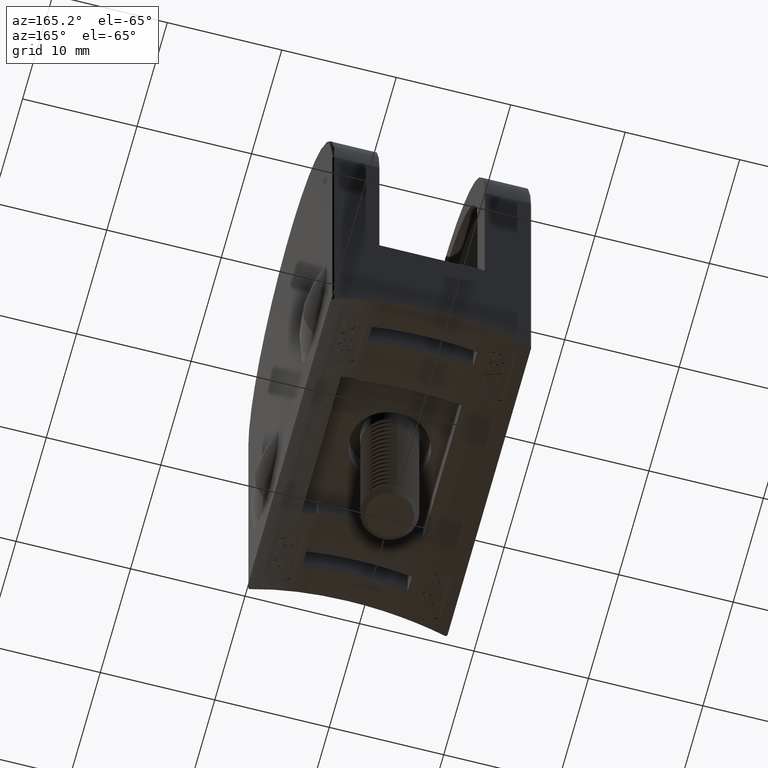
[diagram: clean part render]
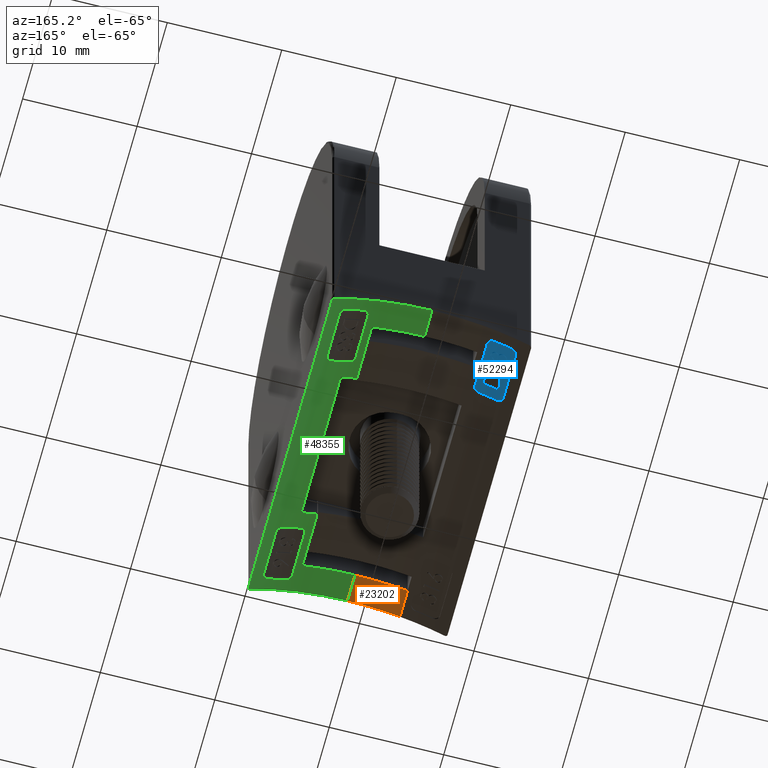
[diagram: same view with three faces highlighted in distinct colors, each labeled with its STEP entity id]
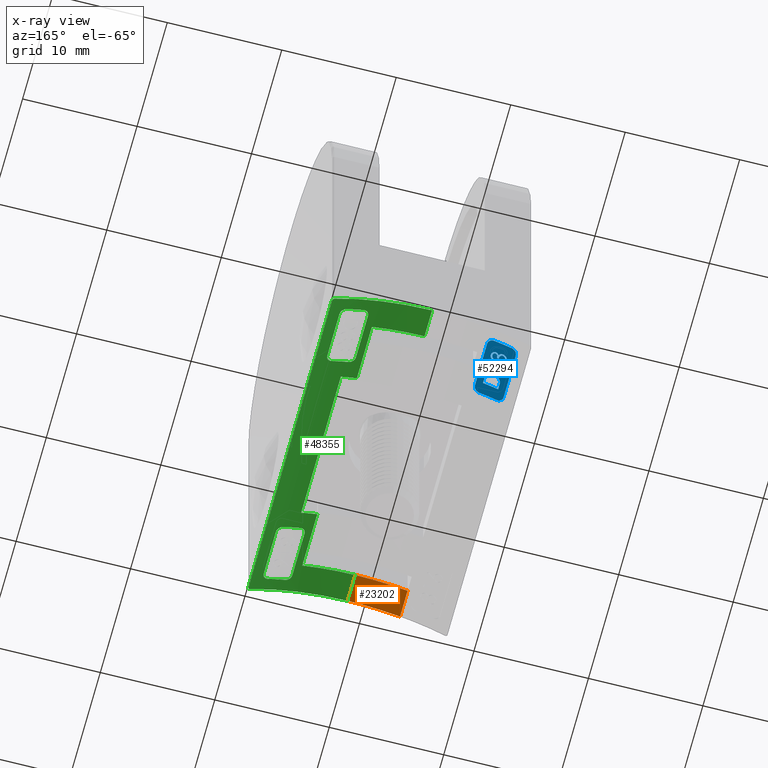
[diagram: x-ray of the same camera — body ghosted, the three highlighted faces saturated]
A machine part, auxiliary view with three faces highlighted in distinct colors.
The next image is the same camera in x-ray (body ghosted, the three faces saturated) — at least one of them is partly hidden behind the body in this view.
Their STEP definitions:

[orange] entity #23202 — the highlighted cylindrical surface (partial cylindrical patch) has radius 16.85 mm, axis along (0, -1, -0).
#1582 = AXIS2_PLACEMENT_3D ( 'NONE', #35016, #36403, #23592 ) ;
#2149 = CIRCLE ( 'NONE', #1582, 16.84999999999999800 ) ;
#3516 = DIRECTION ( 'NONE',  ( 0.0000000000000000000, -1.000000000000000000, -6.672013369141565500E-017 ) ) ;
#3903 = DIRECTION ( 'NONE',  ( -0.0000000000000000000, 1.000000000000000000, -0.0000000000000000000 ) ) ;
#5569 = EDGE_CURVE ( 'NONE', #33663, #31253, #37714, .T. ) ;
#7216 = VERTEX_POINT ( 'NONE', #7971 ) ;
#7242 = CARTESIAN_POINT ( 'NONE',  ( 8.699999999999997500, 11.49999999999999600, -3.469446951953614200E-015 ) ) ;
#7870 = VECTOR ( 'NONE', #45598, 1000.000000000000000 ) ;
#7897 = VERTEX_POINT ( 'NONE', #7242 ) ;
#7971 = CARTESIAN_POINT ( 'NONE',  ( 13.29999999999999900, 11.49999999999999600, -0.6400493523268311300 ) ) ;
#8229 = ORIENTED_EDGE ( 'NONE', *, *, #54590, .F. ) ;
#8312 = AXIS2_PLACEMENT_3D ( 'NONE', #55527, #3516, #36703 ) ;
#12824 = CARTESIAN_POINT ( 'NONE',  ( 13.29999999999999700, 13.99999999999999500, -0.6400493523268311300 ) ) ;
#19451 = CYLINDRICAL_SURFACE ( 'NONE', #35006, 16.84999999999999800 ) ;
#20435 = LINE ( 'NONE', #40244, #7870 ) ;
#23087 = ORIENTED_EDGE ( 'NONE', *, *, #42446, .T. ) ;
#23202 = ADVANCED_FACE ( 'NONE', ( #30602 ), #19451, .F. ) ;
#23592 = DIRECTION ( 'NONE',  ( 0.0000000000000000000, 0.0000000000000000000, 1.000000000000000000 ) ) ;
#24008 = EDGE_LOOP ( 'NONE', ( #8229, #23087, #57795, #29252 ) ) ;
#26900 = DIRECTION ( 'NONE',  ( -0.0000000000000000000, 1.000000000000000000, -0.0000000000000000000 ) ) ;
#27285 = CARTESIAN_POINT ( 'NONE',  ( 8.699999999999997500, -13.99999999999999800, -3.469446951953614200E-015 ) ) ;
#29252 = ORIENTED_EDGE ( 'NONE', *, *, #46962, .T. ) ;
#30602 = FACE_OUTER_BOUND ( 'NONE', #24008, .T. ) ;
#30948 = CARTESIAN_POINT ( 'NONE',  ( 8.699999999999997500, 13.99999999999999300, -3.469446951953614200E-015 ) ) ;
#31253 = VERTEX_POINT ( 'NONE', #30948 ) ;
#33663 = VERTEX_POINT ( 'NONE', #12824 ) ;
#35006 = AXIS2_PLACEMENT_3D ( 'NONE', #55749, #26900, #60102 ) ;
#35016 = CARTESIAN_POINT ( 'NONE',  ( 8.699999999999997500, 11.49999999999999600, -16.85000000000000100 ) ) ;
#36403 = DIRECTION ( 'NONE',  ( -0.0000000000000000000, 1.000000000000000000, 0.0000000000000000000 ) ) ;
#36703 = DIRECTION ( 'NONE',  ( 0.0000000000000000000, 1.029509481291874000E-016, -1.000000000000000000 ) ) ;
#37714 = CIRCLE ( 'NONE', #8312, 16.84999999999999400 ) ;
#40244 = CARTESIAN_POINT ( 'NONE',  ( 13.29999999999999900, -13.99999999999999800, -0.6400493523268311300 ) ) ;
#42446 = EDGE_CURVE ( 'NONE', #7897, #31253, #43701, .T. ) ;
#43701 = LINE ( 'NONE', #27285, #51075 ) ;
#45598 = DIRECTION ( 'NONE',  ( 0.0000000000000000000, -1.000000000000000000, 0.0000000000000000000 ) ) ;
#46962 = EDGE_CURVE ( 'NONE', #33663, #7216, #20435, .T. ) ;
#51075 = VECTOR ( 'NONE', #3903, 1000.000000000000000 ) ;
#54590 = EDGE_CURVE ( 'NONE', #7897, #7216, #2149, .T. ) ;
#55527 = CARTESIAN_POINT ( 'NONE',  ( 8.699999999999997500, 13.99999999999999500, -16.85000000000000100 ) ) ;
#55749 = CARTESIAN_POINT ( 'NONE',  ( 8.699999999999997500, -13.99999999999999800, -16.85000000000000100 ) ) ;
#57795 = ORIENTED_EDGE ( 'NONE', *, *, #5569, .F. ) ;
#60102 = DIRECTION ( 'NONE',  ( 0.0000000000000000000, 0.0000000000000000000, 1.000000000000000000 ) ) ;

[blue] entity #52294 — the highlighted cylindrical surface (partial cylindrical patch) has radius 16.95 mm, axis along (0, 1, 0).
#31 = FACE_BOUND ( 'NONE', #44784, .T. ) ;
#103 = VECTOR ( 'NONE', #25463, 1000.000000000000000 ) ;
#155 = ORIENTED_EDGE ( 'NONE', *, *, #34266, .F. ) ;
#200 = CARTESIAN_POINT ( 'NONE',  ( 1.710104550793183600, 11.76294094495290000, -1.408372442998194500 ) ) ;
#241 = CARTESIAN_POINT ( 'NONE',  ( 2.786522877743203600, 10.81231605522316000, -0.9649856036212511900 ) ) ;
#285 = CARTESIAN_POINT ( 'NONE',  ( 1.705576539112781300, 11.61332547745970700, -1.410422918687494600 ) ) ;
#394 = CARTESIAN_POINT ( 'NONE',  ( 1.704439387294804700, 10.71570994312909000, -1.410936868309585100 ) ) ;
#408 = LINE ( 'NONE', #2202, #46367 ) ;
#447 = CARTESIAN_POINT ( 'NONE',  ( 8.699999999999997500, -13.99999999999999500, -16.85000000000000100 ) ) ;
#484 = CARTESIAN_POINT ( 'NONE',  ( 1.722207244085896900, 11.53516428654136800, -1.402886778209083900 ) ) ;
#557 = B_SPLINE_CURVE_WITH_KNOTS ( 'NONE', 3,
 ( #37927, #19397, #14819, #38740, #56767, #19188, #51961, #10126, #795, #23542, #42892, #38535, #200, #52166, #14413, #2926 ),
 .UNSPECIFIED., .F., .F.,
 ( 4, 3, 3, 3, 3, 4 ),
 ( 0.0000000000000000000, 0.2019879595391999300, 0.4048037491840471600, 0.6031752373187961900, 0.8218135533024737400, 1.000000000000000000 ),
 .UNSPECIFIED. ) ;
#620 = CARTESIAN_POINT ( 'NONE',  ( 1.722207244085870400, 10.51753608141322600, -1.402886778209095700 ) ) ;
#648 = VERTEX_POINT ( 'NONE', #54995 ) ;
#763 = B_SPLINE_CURVE_WITH_KNOTS ( 'NONE', 3,
 ( #38956, #20025, #15655, #58797, #54212, #49663 ),
 .UNSPECIFIED., .F., .F.,
 ( 4, 2, 4 ),
 ( 4.848699518061080300E-019, 9.543726081628298700E-005, 0.0001908745216325654900 ),
 .UNSPECIFIED. ) ;
#795 = CARTESIAN_POINT ( 'NONE',  ( 1.764161949502508500, 11.89337319115338700, -1.384005863292074400 ) ) ;
#884 = VERTEX_POINT ( 'NONE', #25784 ) ;
#1177 = DIRECTION ( 'NONE',  ( 0.0000000000000000000, 1.023435679042364400E-016, -1.000000000000000000 ) ) ;
#1218 = CARTESIAN_POINT ( 'NONE',  ( 1.710990827387379300, 10.55660783161245900, -1.407970142634600700 ) ) ;
#1242 = CARTESIAN_POINT ( 'NONE',  ( 2.786996345155891700, 11.34709945500139000, -0.9647617103091951100 ) ) ;
#1281 = CARTESIAN_POINT ( 'NONE',  ( 2.156611877401361200, 11.07780330521869900, -1.213873151681382300 ) ) ;
#1414 = CARTESIAN_POINT ( 'NONE',  ( 1.710104550793207100, 10.74531273982482600, -1.408372442998178100 ) ) ;
#1590 = VERTEX_POINT ( 'NONE', #29263 ) ;
#1616 = CARTESIAN_POINT ( 'NONE',  ( 1.716985913372375700, 10.78127067422128600, -1.405257486054752600 ) ) ;
#1644 = CARTESIAN_POINT ( 'NONE',  ( 2.956837606837609200, 11.67398253872862700, -0.9026307584678694400 ) ) ;
#1666 = CARTESIAN_POINT ( 'NONE',  ( 1.567414614126834800, 11.61347742224962500, -1.473760931849465100 ) ) ;
#1894 = CARTESIAN_POINT ( 'NONE',  ( 2.919425968648132800, 9.526736027576269800, -0.9160839660982239600 ) ) ;
#2133 = EDGE_CURVE ( 'NONE', #43071, #20185, #59028, .T. ) ;
#2202 = CARTESIAN_POINT ( 'NONE',  ( 1.956169871794873000, -13.99999999999999500, -1.299332644483943900 ) ) ;
#2206 = CARTESIAN_POINT ( 'NONE',  ( 1.608964579538711300, 11.88548813545048300, -1.454543195789777600 ) ) ;
#2214 = B_SPLINE_CURVE_WITH_KNOTS ( 'NONE', 3,
 ( #37851, #23259, #46755, #42411, #18292, #61036, #32681, #4256, #37442, #42217, #13727, #18495, #51675, #56482, #28043, #33899 ),
 .UNSPECIFIED., .F., .F.,
 ( 4, 3, 3, 3, 3, 4 ),
 ( 0.0000000000000000000, 0.2790293430271762500, 0.4764936407752354800, 0.6768543830719954100, 0.8483795241102641800, 1.000000000000000000 ),
 .UNSPECIFIED. ) ;
#2303 = CARTESIAN_POINT ( 'NONE',  ( 1.636212443086038700, 10.91702304999578900, -1.441989121436695300 ) ) ;
#2517 = CARTESIAN_POINT ( 'NONE',  ( 1.667199318359367400, 9.755047142188351100, -1.427830860090612000 ) ) ;
#2623 = CARTESIAN_POINT ( 'NONE',  ( 2.454052983845405000, 10.82226066012914600, -1.092758938465860000 ) ) ;
#2648 = CARTESIAN_POINT ( 'NONE',  ( 2.949068616459161100, 10.55896716009456800, -0.9054204192900496800 ) ) ;
#2687 = VECTOR ( 'NONE', #12236, 1000.000000000000000 ) ;
#2698 = CARTESIAN_POINT ( 'NONE',  ( 1.249604698702273300, 12.95183951000786700, -1.624851321731434400 ) ) ;
#2754 = AXIS2_PLACEMENT_3D ( 'NONE', #28942, #5342, #52344 ) ;
#2781 = CARTESIAN_POINT ( 'NONE',  ( 1.956169871794873000, 10.21167200854700100, -1.299332644483943900 ) ) ;
#2817 = CARTESIAN_POINT ( 'NONE',  ( 1.566079059829062100, 11.67053744324251400, -1.474380597212011200 ) ) ;
#2848 = CARTESIAN_POINT ( 'NONE',  ( 1.993005892761750700, 11.11057692307691400, -1.283409813145614200 ) ) ;
#2853 = CARTESIAN_POINT ( 'NONE',  ( 2.956837606837608300, 10.65635433360042200, -0.9026307584678696600 ) ) ;
#2870 = CARTESIAN_POINT ( 'NONE',  ( 3.499999999999998700, -13.99999999999999300, -0.7173467774206493400 ) ) ;
#2910 = CARTESIAN_POINT ( 'NONE',  ( 1.860975183659949700, 11.09105757661380500, -1.340884383165456400 ) ) ;
#2926 = CARTESIAN_POINT ( 'NONE',  ( 1.701762820512823000, 11.67265750200319600, -1.412151173831141200 ) ) ;
#3038 = CARTESIAN_POINT ( 'NONE',  ( 2.509697969626715000, 10.88949085517692200, -1.070805881866723900 ) ) ;
#3317 = DIRECTION ( 'NONE',  ( -0.0000000000000000000, 1.000000000000000000, -0.0000000000000000000 ) ) ;
#3364 = CARTESIAN_POINT ( 'NONE',  ( 2.499061231201940500, 10.02354884413663100, -1.074847780441735300 ) ) ;
#3395 = EDGE_CURVE ( 'NONE', #10933, #884, #57936, .T. ) ;
#3453 = CARTESIAN_POINT ( 'NONE',  ( 1.716953462457897900, 10.30865857114512500, -1.405219807556725900 ) ) ;
#3534 = CARTESIAN_POINT ( 'NONE',  ( 2.922916666666671000, 8.973557692307684500, -0.9148875699064441500 ) ) ;
#3770 = CARTESIAN_POINT ( 'NONE',  ( 2.193363335676414800, 12.07458073435295600, -1.198559515347100700 ) ) ;
#3793 = VECTOR ( 'NONE', #5796, 1000.000000000000000 ) ;
#3849 = CARTESIAN_POINT ( 'NONE',  ( 2.236540552113232700, 11.79691732034381200, -1.180722609944557800 ) ) ;
#4110 = VERTEX_POINT ( 'NONE', #36941 ) ;
#4191 = CARTESIAN_POINT ( 'NONE',  ( 2.561692868251332500, 10.00017967684506800, -1.050396965304496400 ) ) ;
#4196 = B_SPLINE_CURVE_WITH_KNOTS ( 'NONE', 3,
 ( #4810, #33254, #38013, #285, #19482, #484, #57261, #28414, #42574, #33457 ),
 .UNSPECIFIED., .F., .F.,
 ( 4, 3, 3, 4 ),
 ( 0.0000000000000000000, 0.2472238026438555700, 0.7464696371982605400, 1.000000000000000000 ),
 .UNSPECIFIED. ) ;
#4256 = CARTESIAN_POINT ( 'NONE',  ( 2.190861422732665300, 10.88067333697993700, -1.199633452068480600 ) ) ;
#4353 = CARTESIAN_POINT ( 'NONE',  ( 1.701762820512823000, 10.65502929687498900, -1.412151173831141200 ) ) ;
#4455 = CARTESIAN_POINT ( 'NONE',  ( 2.613123080261754000, 11.04273504273503400, -1.030631195779088800 ) ) ;
#4581 = CARTESIAN_POINT ( 'NONE',  ( 2.922916666666667900, 9.240685096153839600, -0.9148875699064450400 ) ) ;
#4655 = CARTESIAN_POINT ( 'NONE',  ( 2.915005803076313700, 10.84721782991644000, -0.9177478311651357000 ) ) ;
#4801 = ORIENTED_EDGE ( 'NONE', *, *, #38799, .F. ) ;
#4810 = CARTESIAN_POINT ( 'NONE',  ( 1.701762820512823000, 11.67265750200319600, -1.412151173831141200 ) ) ;
#5155 = CARTESIAN_POINT ( 'NONE',  ( 2.397142094017087100, 11.60243055555554500, -1.115436700785478000 ) ) ;
#5198 = ORIENTED_EDGE ( 'NONE', *, *, #10140, .F. ) ;
#5342 = DIRECTION ( 'NONE',  ( -0.0000000000000000000, 1.000000000000000000, 1.024442997624098500E-016 ) ) ;
#5385 = ORIENTED_EDGE ( 'NONE', *, *, #9582, .T. ) ;
#5664 = CARTESIAN_POINT ( 'NONE',  ( 2.244762870592950800, 10.05902777777777500, -1.177335465750423600 ) ) ;
#5720 = CARTESIAN_POINT ( 'NONE',  ( 2.408867765803614600, 11.71896354785335200, -1.110744769467167300 ) ) ;
#5796 = DIRECTION ( 'NONE',  ( -0.0000000000000000000, 1.000000000000000000, -0.0000000000000000000 ) ) ;
#5849 = CARTESIAN_POINT ( 'NONE',  ( 1.993005892761750700, 11.11057692307691400, -1.283409813145614200 ) ) ;
#5916 = CARTESIAN_POINT ( 'NONE',  ( 2.509697969626688300, 11.90711906030511200, -1.070805881866740100 ) ) ;
#6381 = CARTESIAN_POINT ( 'NONE',  ( 1.889452739742225600, 10.97448936099325300, -1.328436096332029400 ) ) ;
#6431 = CARTESIAN_POINT ( 'NONE',  ( 1.855842107786005700, 11.25329997172006500, -1.343142059425298300 ) ) ;
#6552 = CARTESIAN_POINT ( 'NONE',  ( 3.499999999999998700, 8.499999999999991100, -0.7173467774206493400 ) ) ;
#6607 = B_SPLINE_CURVE_WITH_KNOTS ( 'NONE', 3,
 ( #54492, #22081, #31521, #2698, #59069, #45206 ),
 .UNSPECIFIED., .F., .F.,
 ( 4, 2, 4 ),
 ( 1.748223473168675600E-018, 0.0004128072633008460300, 0.0008256145266016903300 ),
 .UNSPECIFIED. ) ;
#6621 = CARTESIAN_POINT ( 'NONE',  ( 2.955338704299475000, 11.72362905590429200, -0.9031705616515571800 ) ) ;
#6625 = CARTESIAN_POINT ( 'NONE',  ( 1.889014189916333300, 11.36841588418010900, -1.328455929059380300 ) ) ;
#6641 = CARTESIAN_POINT ( 'NONE',  ( 1.761948289916826600, 11.29599130316606200, -1.384923895727775600 ) ) ;
#6798 = B_SPLINE_CURVE_WITH_KNOTS ( 'NONE', 3,
 ( #10810, #1894, #25257, #39861 ),
 .UNSPECIFIED., .F., .F.,
 ( 4, 4 ),
 ( 1.791395985745431000E-018, 0.0004241509431620876900 ),
 .UNSPECIFIED. ) ;
#6887 = CARTESIAN_POINT ( 'NONE',  ( 1.566079059829062100, 10.65290923811430800, -1.474380597212011200 ) ) ;
#6995 = CARTESIAN_POINT ( 'NONE',  ( 2.274246712445104000, 10.99199579978999700, -1.165210559495900800 ) ) ;
#7041 = CARTESIAN_POINT ( 'NONE',  ( 3.255017346810581200, 8.050595126685983900, -0.7980726449902687500 ) ) ;
#7200 = CARTESIAN_POINT ( 'NONE',  ( 2.228067407852566200, 11.03160473424144400, -1.184222377337929000 ) ) ;
#7309 = VERTEX_POINT ( 'NONE', #5664 ) ;
#7410 = CARTESIAN_POINT ( 'NONE',  ( 2.400654353229640900, 10.66327792858196400, -1.114027749750538600 ) ) ;
#7480 = B_SPLINE_CURVE_WITH_KNOTS ( 'NONE', 3,
 ( #34316, #34912, #29937, #53943, #48404, #5916, #48593, #53131, #53735, #39092, #44454, #25494, #5720, #58729, #58329, #29528 ),
 .UNSPECIFIED., .F., .F.,
 ( 4, 3, 3, 3, 3, 4 ),
 ( 0.0000000000000000000, 0.1547772456757009500, 0.3102887452691042200, 0.4561130539694774900, 0.7431018192119339700, 1.000000000000000000 ),
 .UNSPECIFIED. ) ;
#7505 = CARTESIAN_POINT ( 'NONE',  ( 1.930535218518145200, 9.997844152098649000, -1.310293646966656200 ) ) ;
#7604 = CARTESIAN_POINT ( 'NONE',  ( 1.670184847423175300, 11.97582297426401300, -1.426504970644400600 ) ) ;
#7697 = CARTESIAN_POINT ( 'NONE',  ( 1.816900112831115100, 11.07306036972615900, -1.360410797321423700 ) ) ;
#7722 = CARTESIAN_POINT ( 'NONE',  ( 2.922916666666669300, -13.99999999999999500, -0.9148875699064446000 ) ) ;
#7732 = VERTEX_POINT ( 'NONE', #39616 ) ;
#7766 = CARTESIAN_POINT ( 'NONE',  ( 2.261458333333332700, 11.60243055555554600, -1.170469356304153300 ) ) ;
#7887 = VERTEX_POINT ( 'NONE', #40623 ) ;
#7918 = CARTESIAN_POINT ( 'NONE',  ( 2.617628205128207200, 10.38127670940170200, -1.028898478647323400 ) ) ;
#8207 = EDGE_CURVE ( 'NONE', #46337, #24803, #10480, .T. ) ;
#8228 = LINE ( 'NONE', #59734, #103 ) ;
#8368 = VERTEX_POINT ( 'NONE', #9982 ) ;
#8543 = CARTESIAN_POINT ( 'NONE',  ( 2.076470104131805400, 12.12192345502638300, -1.247652655506750000 ) ) ;
#8626 = CARTESIAN_POINT ( 'NONE',  ( 2.115404279157887300, 11.97022009575820400, -1.231220785095193700 ) ) ;
#8833 = CARTESIAN_POINT ( 'NONE',  ( 1.956169871794873000, 10.21167200854700100, -1.299332644483943900 ) ) ;
#8870 = CARTESIAN_POINT ( 'NONE',  ( 2.817392090965781000, 11.73945802990714400, -0.9535379415263424100 ) ) ;
#9153 = VECTOR ( 'NONE', #36364, 1000.000000000000000 ) ;
#9333 = CARTESIAN_POINT ( 'NONE',  ( 1.600000000000002500, 8.973557692307686300, -1.458687515354646400 ) ) ;
#9582 = EDGE_CURVE ( 'NONE', #29750, #33282, #6607, .T. ) ;
#9632 = CARTESIAN_POINT ( 'NONE',  ( 2.789705519223409700, 10.99158198301896400, -0.9637484544313578100 ) ) ;
#9718 = ORIENTED_EDGE ( 'NONE', *, *, #28990, .F. ) ;
#9757 = CARTESIAN_POINT ( 'NONE',  ( 2.643856823749771500, 10.92334204211708100, -1.018806831808886500 ) ) ;
#9982 = CARTESIAN_POINT ( 'NONE',  ( 1.956169871794873400, 11.34802350427349700, -1.299332644483946400 ) ) ;
#10126 = CARTESIAN_POINT ( 'NONE',  ( 1.785131421390285600, 11.91880804379500000, -1.374608115744832700 ) ) ;
#10140 = EDGE_CURVE ( 'NONE', #1590, #648, #13357, .T. ) ;
#10173 = CARTESIAN_POINT ( 'NONE',  ( 2.340960536858975400, 11.90586396567841200, -1.138058137002449200 ) ) ;
#10201 = VERTEX_POINT ( 'NONE', #46818 ) ;
#10480 = B_SPLINE_CURVE_WITH_KNOTS ( 'NONE', 3,
 ( #19914, #52883, #43405, #19718, #14924, #38649 ),
 .UNSPECIFIED., .F., .F.,
 ( 4, 2, 4 ),
 ( 4.470280076681872500E-019, 0.0004017633215715591700, 0.0008035266431431179100 ),
 .UNSPECIFIED. ) ;
#10567 = CARTESIAN_POINT ( 'NONE',  ( 2.955925850138192900, 11.62505954139912800, -0.9029591114838749800 ) ) ;
#10810 = CARTESIAN_POINT ( 'NONE',  ( 2.875215344551283800, 9.660456730769228200, -0.9322619786086092700 ) ) ;
#10863 = CARTESIAN_POINT ( 'NONE',  ( 2.613123080261754000, 11.04273504273503400, -1.030631195779088800 ) ) ;
#10933 = VERTEX_POINT ( 'NONE', #40484 ) ;
#11143 = CARTESIAN_POINT ( 'NONE',  ( 2.659369340274999200, 12.05836261241491800, -1.012836851631569600 ) ) ;
#11184 = CARTESIAN_POINT ( 'NONE',  ( 2.193363335676414400, 11.05695252922474700, -1.198559515347102300 ) ) ;
#11228 = ORIENTED_EDGE ( 'NONE', *, *, #15881, .F. ) ;
#11491 = ORIENTED_EDGE ( 'NONE', *, *, #17530, .T. ) ;
#11503 = CARTESIAN_POINT ( 'NONE',  ( 1.860975183659942600, 12.10868578174199900, -1.340884383165464400 ) ) ;
#11566 = CARTESIAN_POINT ( 'NONE',  ( 1.716953462457895500, 11.32628677627332800, -1.405219807556725000 ) ) ;
#11705 = CARTESIAN_POINT ( 'NONE',  ( 1.934581614532075300, 12.12529701161450100, -1.308681539272236400 ) ) ;
#11810 = LINE ( 'NONE', #24024, #23690 ) ;
#11854 = B_SPLINE_CURVE_WITH_KNOTS ( 'NONE', 3,
 ( #6887, #15935, #49161, #30294, #50573, #2303, #26061, #12606, #31332, #16743, #7697, #2910, #45226, #59280, #30916, #16546 ),
 .UNSPECIFIED., .F., .F.,
 ( 4, 3, 3, 3, 3, 4 ),
 ( 0.0000000000000000000, 0.2279444961857563500, 0.4582503499620074700, 0.6618990568365877800, 0.8697221680855913300, 1.000000000000000000 ),
 .UNSPECIFIED. ) ;
#11871 = VERTEX_POINT ( 'NONE', #32201 ) ;
#11896 = CARTESIAN_POINT ( 'NONE',  ( 1.993005892761750700, 12.12820512820511900, -1.283409813145613800 ) ) ;
#11920 = CARTESIAN_POINT ( 'NONE',  ( 1.636212443086031400, 11.93465125512398300, -1.441989121436693600 ) ) ;
#12127 = CARTESIAN_POINT ( 'NONE',  ( 2.397900803316751300, 10.62386559235874000, -1.115132781520813600 ) ) ;
#12148 = CARTESIAN_POINT ( 'NONE',  ( 2.705207468144248000, 10.28768698454156700, -0.9954463877892487700 ) ) ;
#12236 = DIRECTION ( 'NONE',  ( -0.0000000000000000000, 1.000000000000000000, -0.0000000000000000000 ) ) ;
#12297 = CARTESIAN_POINT ( 'NONE',  ( 1.373658174163745200, 7.999999999999992900, -1.564494054906234900 ) ) ;
#12314 = VERTEX_POINT ( 'NONE', #54257 ) ;
#12386 = EDGE_CURVE ( 'NONE', #45480, #27036, #13330, .T. ) ;
#12528 = CARTESIAN_POINT ( 'NONE',  ( 2.478073333414916300, 10.85882679958917400, -1.083250166428225900 ) ) ;
#12606 = CARTESIAN_POINT ( 'NONE',  ( 1.700305930688944100, 10.99469900852093900, -1.412776198589128500 ) ) ;
#12617 = CARTESIAN_POINT ( 'NONE',  ( 1.600000000000001200, 9.383524055154909500, -1.458687515354646800 ) ) ;
#13039 = CARTESIAN_POINT ( 'NONE',  ( 2.672140679584176700, 10.40540466589336600, -1.007941332480720500 ) ) ;
#13136 = CARTESIAN_POINT ( 'NONE',  ( 2.208342156868641200, 11.86566054406119600, -1.192385927360633000 ) ) ;
#13199 = EDGE_CURVE ( 'NONE', #16220, #20170, #53351, .T. ) ;
#13330 = B_SPLINE_CURVE_WITH_KNOTS ( 'NONE', 3,
 ( #35439, #26649, #44770, #7041, #40222, #54466 ),
 .UNSPECIFIED., .F., .F.,
 ( 4, 2, 4 ),
 ( 0.0000000000000000000, 0.0004017612816767367800, 0.0008035225633534735500 ),
 .UNSPECIFIED. ) ;
#13336 = CARTESIAN_POINT ( 'NONE',  ( 2.243818710395650400, 11.76041332481393000, -1.177724378515976300 ) ) ;
#13357 = B_SPLINE_CURVE_WITH_KNOTS ( 'NONE', 3,
 ( #60897, #33161, #8870, #61300, #23323, #51741, #51542, #13794, #47026, #37301 ),
 .UNSPECIFIED., .F., .F.,
 ( 4, 2, 2, 2, 4 ),
 ( 0.0000000000000000000, 9.557193595196699500E-005, 0.0001911438719039339900, 0.0002867158078559009900, 0.0003822877438078679800 ),
 .UNSPECIFIED. ) ;
#13533 = CARTESIAN_POINT ( 'NONE',  ( 2.481835126422041100, 11.01698887072663200, -1.081754538900677100 ) ) ;
#13643 = CARTESIAN_POINT ( 'NONE',  ( 1.701762820512823000, 10.65502929687498900, -1.412151173831141200 ) ) ;
#13727 = CARTESIAN_POINT ( 'NONE',  ( 2.115404279157901500, 10.95259189062998400, -1.231220785095193700 ) ) ;
#13794 = CARTESIAN_POINT ( 'NONE',  ( 2.673813620807050200, 11.93392076585973200, -1.007387025139715500 ) ) ;
#13807 = AXIS2_PLACEMENT_3D ( 'NONE', #37468, #42243, #15083 ) ;
#13846 = EDGE_CURVE ( 'NONE', #52608, #55676, #18377, .T. ) ;
#13850 = CARTESIAN_POINT ( 'NONE',  ( 2.673813620807042700, 10.91629256073151000, -1.007387025139718100 ) ) ;
#13935 = CARTESIAN_POINT ( 'NONE',  ( 2.704527608350034500, 11.03162911941479500, -0.9956983812107534900 ) ) ;
#14192 = VERTEX_POINT ( 'NONE', #50195 ) ;
#14225 = VERTEX_POINT ( 'NONE', #22553 ) ;
#14405 = CARTESIAN_POINT ( 'NONE',  ( 1.808628153963591100, 10.92261888320560600, -1.364151812714400100 ) ) ;
#14413 = CARTESIAN_POINT ( 'NONE',  ( 1.702331507370815600, 11.70289995665997500, -1.411893378489457600 ) ) ;
#14813 = FACE_BOUND ( 'NONE', #23603, .T. ) ;
#14819 = CARTESIAN_POINT ( 'NONE',  ( 1.918675346090882300, 12.00384681326425200, -1.315613809683557000 ) ) ;
#14865 = CARTESIAN_POINT ( 'NONE',  ( 2.705207468144250200, 11.30531518966976100, -0.9954463877892433300 ) ) ;
#14924 = CARTESIAN_POINT ( 'NONE',  ( 3.500000000000150500, 12.63603539571774400, -0.7173467774204469500 ) ) ;
#15083 = DIRECTION ( 'NONE',  ( 0.0000000000000000000, -1.023435679042364400E-016, 1.000000000000000000 ) ) ;
#15152 = B_SPLINE_CURVE_WITH_KNOTS ( 'NONE', 3,
 ( #54748, #26308, #56215, #3364, #4191, #37383, #32419, #17380, #41535, #27773 ),
 .UNSPECIFIED., .F., .F.,
 ( 4, 2, 2, 2, 4 ),
 ( 0.0000000000000000000, 0.0002071139578519594600, 0.0004142279157039189200, 0.0006213418735558783200, 0.0008284558314078378300 ),
 .UNSPECIFIED. ) ;
#15273 = CARTESIAN_POINT ( 'NONE',  ( 2.613123080261754000, 12.06036324786324000, -1.030631195779087500 ) ) ;
#15605 = EDGE_CURVE ( 'NONE', #52249, #4110, #16460, .T. ) ;
#15655 = CARTESIAN_POINT ( 'NONE',  ( 2.274246712445100900, 12.00962400491820900, -1.165210559495902100 ) ) ;
#15881 = EDGE_CURVE ( 'NONE', #16285, #11871, #45047, .T. ) ;
#15935 = CARTESIAN_POINT ( 'NONE',  ( 1.567766856176338700, 10.70795033012941700, -1.473597499933834400 ) ) ;
#15949 = LINE ( 'NONE', #7722, #2687 ) ;
#16004 = VERTEX_POINT ( 'NONE', #46989 ) ;
#16079 = CARTESIAN_POINT ( 'NONE',  ( 2.890811114437207500, 11.90792673055914700, -0.9265282232335383400 ) ) ;
#16220 = VERTEX_POINT ( 'NONE', #7766 ) ;
#16285 = VERTEX_POINT ( 'NONE', #2781 ) ;
#16301 = ORIENTED_EDGE ( 'NONE', *, *, #2133, .F. ) ;
#16306 = CARTESIAN_POINT ( 'NONE',  ( 3.000000000000002700, 12.99999999999999300, -0.8871525096554311300 ) ) ;
#16440 = DIRECTION ( 'NONE',  ( -0.0000000000000000000, 1.000000000000000000, -0.0000000000000000000 ) ) ;
#16460 = B_SPLINE_CURVE_WITH_KNOTS ( 'NONE', 3,
 ( #4353, #56585, #61338, #32993, #1218, #620, #19829, #38762, #52391, #58005 ),
 .UNSPECIFIED., .F., .F.,
 ( 4, 3, 3, 4 ),
 ( 0.0000000000000000000, 0.2472238026438520200, 0.7464696371978353200, 1.000000000000000000 ),
 .UNSPECIFIED. ) ;
#16504 = CARTESIAN_POINT ( 'NONE',  ( 1.956169871794873000, 11.22930021367520800, -1.299332644483943900 ) ) ;
#16546 = CARTESIAN_POINT ( 'NONE',  ( 1.993005892761750700, 11.11057692307691400, -1.283409813145614200 ) ) ;
#16558 = CARTESIAN_POINT ( 'NONE',  ( 1.600745335553598100, 9.473099287539156400, -1.458343692666632400 ) ) ;
#16629 = VERTEX_POINT ( 'NONE', #27311 ) ;
#16743 = CARTESIAN_POINT ( 'NONE',  ( 1.776719940101319600, 11.04869426892077700, -1.378390736183637400 ) ) ;
#16852 = EDGE_CURVE ( 'NONE', #29750, #60164, #46269, .T. ) ;
#16885 = CARTESIAN_POINT ( 'NONE',  ( 2.825240441380504600, 10.35774531072661200, -0.9506019319715944800 ) ) ;
#17056 = CARTESIAN_POINT ( 'NONE',  ( 1.816900112831104900, 12.09068857485435400, -1.360410797321426100 ) ) ;
#17067 = CARTESIAN_POINT ( 'NONE',  ( 2.464914233687040200, 10.84114186013961700, -1.088453692974269600 ) ) ;
#17285 = CARTESIAN_POINT ( 'NONE',  ( 2.617628205128207200, 10.26255341880341200, -1.028898478647324300 ) ) ;
#17357 = CARTESIAN_POINT ( 'NONE',  ( 1.805999867352104000, 9.916334692153252900, -1.365321696236301700 ) ) ;
#17380 = CARTESIAN_POINT ( 'NONE',  ( 2.816874125361586300, 9.787402250939129200, -0.9536642720615455800 ) ) ;
#17530 = EDGE_CURVE ( 'NONE', #16285, #32163, #49139, .T. ) ;
#17618 = ORIENTED_EDGE ( 'NONE', *, *, #31957, .F. ) ;
#17647 = CARTESIAN_POINT ( 'NONE',  ( 0.9999999999999965600, 8.499999999999991100, -1.749917218769962300 ) ) ;
#17889 = VERTEX_POINT ( 'NONE', #48477 ) ;
#17902 = ORIENTED_EDGE ( 'NONE', *, *, #25477, .F. ) ;
#18014 = CARTESIAN_POINT ( 'NONE',  ( 2.228067407852565700, 12.04923293936965000, -1.184222377337928800 ) ) ;
#18147 = VERTEX_POINT ( 'NONE', #51290 ) ;
#18292 = CARTESIAN_POINT ( 'NONE',  ( 2.236540552113236200, 10.77928911521558300, -1.180722609944554200 ) ) ;
#18306 = CARTESIAN_POINT ( 'NONE',  ( 2.559488595660941400, 11.04008117158398900, -1.051347988730439800 ) ) ;
#18366 = ORIENTED_EDGE ( 'NONE', *, *, #44020, .F. ) ;
#18377 = B_SPLINE_CURVE_WITH_KNOTS ( 'NONE', 3,
 ( #42016, #51690, #52100, #13533, #28269, #18306, #27848, #60842 ),
 .UNSPECIFIED., .F., .F.,
 ( 4, 2, 2, 4 ),
 ( 4.848699518061080300E-019, 0.0001718664818359298600, 0.0002577997227538927800, 0.0003437329636718557100 ),
 .UNSPECIFIED. ) ;
#18433 = ORIENTED_EDGE ( 'NONE', *, *, #47888, .T. ) ;
#18495 = CARTESIAN_POINT ( 'NONE',  ( 2.088313752116936200, 10.96840138966561700, -1.242660155458272600 ) ) ;
#18764 = CARTESIAN_POINT ( 'NONE',  ( 1.747743186992680300, 10.84751445116730300, -1.391389932948077400 ) ) ;
#18850 = EDGE_CURVE ( 'NONE', #32599, #41353, #47560, .T. ) ;
#18960 = EDGE_CURVE ( 'NONE', #7887, #10933, #8228, .T. ) ;
#18967 = CARTESIAN_POINT ( 'NONE',  ( 1.785131421390388400, 10.90117983866690700, -1.374608115744786500 ) ) ;
#19188 = CARTESIAN_POINT ( 'NONE',  ( 1.832596629133351500, 11.96211656338055500, -1.353485579068062200 ) ) ;
#19205 = CARTESIAN_POINT ( 'NONE',  ( 2.817054978503680500, 11.61237181534224300, -0.9536621501051441000 ) ) ;
#19397 = CARTESIAN_POINT ( 'NONE',  ( 1.950402300073970500, 12.00880599114646700, -1.301797969559954000 ) ) ;
#19413 = CARTESIAN_POINT ( 'NONE',  ( 3.499999999999998700, 12.49999999999999300, -0.7173467774206493400 ) ) ;
#19441 = CARTESIAN_POINT ( 'NONE',  ( 2.749332308095117300, 10.86327739033456300, -0.9788800625433482500 ) ) ;
#19481 = ORIENTED_EDGE ( 'NONE', *, *, #54956, .F. ) ;
#19482 = CARTESIAN_POINT ( 'NONE',  ( 1.710990827387385700, 11.57423603674062900, -1.407970142634597600 ) ) ;
#19498 = EDGE_CURVE ( 'NONE', #20170, #55832, #557, .T. ) ;
#19629 = ORIENTED_EDGE ( 'NONE', *, *, #43834, .F. ) ;
#19651 = CARTESIAN_POINT ( 'NONE',  ( 2.914916339685105700, 11.48588389678802300, -0.9177799153117018900 ) ) ;
#19718 = CARTESIAN_POINT ( 'NONE',  ( 3.442261390964649300, 12.76753584754986000, -0.7357669857948560000 ) ) ;
#19742 = B_SPLINE_CURVE_WITH_KNOTS ( 'NONE', 3,
 ( #4455, #33095, #13935, #9632, #28675, #47574, #4655, #37852, #23862, #47358 ),
 .UNSPECIFIED., .F., .F.,
 ( 4, 2, 2, 2, 4 ),
 ( 0.0000000000000000000, 0.0001466881286910801600, 0.0002933762573821604800, 0.0004400643860732407500, 0.0005867525147643210800 ),
 .UNSPECIFIED. ) ;
#19772 = ORIENTED_EDGE ( 'NONE', *, *, #32236, .F. ) ;
#19829 = CARTESIAN_POINT ( 'NONE',  ( 1.740412374824763100, 10.48340862032650900, -1.394688935921755600 ) ) ;
#19869 = CARTESIAN_POINT ( 'NONE',  ( 1.981610576923074300, 12.00948183760682900, -1.288324525942329500 ) ) ;
#19888 = CARTESIAN_POINT ( 'NONE',  ( 2.228067407852566200, 11.03160473424144400, -1.184222377337929000 ) ) ;
#19914 = CARTESIAN_POINT ( 'NONE',  ( 3.000000000000002700, 12.99999999999999300, -0.8871525096554311300 ) ) ;
#20025 = CARTESIAN_POINT ( 'NONE',  ( 2.251663016152006600, 12.03022565846495900, -1.174474429290726800 ) ) ;
#20077 = B_SPLINE_CURVE_WITH_KNOTS ( 'NONE', 3,
 ( #5849, #44588, #29662, #1281, #11184, #19888 ),
 .UNSPECIFIED., .F., .F.,
 ( 4, 2, 4 ),
 ( 0.0000000000000000000, 0.0001361326726804172500, 0.0002722653453608344900 ),
 .UNSPECIFIED. ) ;
#20170 = VERTEX_POINT ( 'NONE', #19869 ) ;
#20185 = VERTEX_POINT ( 'NONE', #29643 ) ;
#20246 = CARTESIAN_POINT ( 'NONE',  ( 2.481835126422046800, 12.03461707585484000, -1.081754538900673500 ) ) ;
#20428 = CARTESIAN_POINT ( 'NONE',  ( 2.312423823595588100, 10.94350277388688600, -1.149624345382615600 ) ) ;
#21096 = B_SPLINE_CURVE_WITH_KNOTS ( 'NONE', 3,
 ( #32992, #23962, #37747, #42308, #47667, #19205, #61336, #57195 ),
 .UNSPECIFIED., .F., .F.,
 ( 4, 2, 2, 4 ),
 ( 4.848699518061080300E-019, 0.0001891838321920672000, 0.0002837757482881024900, 0.0003783676643841377700 ),
 .UNSPECIFIED. ) ;
#21273 = CARTESIAN_POINT ( 'NONE',  ( 1.905335791005383900, 11.23943285515988000, -1.321377769476356400 ) ) ;
#21415 = CARTESIAN_POINT ( 'NONE',  ( 1.776719940101309200, 12.06632247404897000, -1.378390736183640100 ) ) ;
#21621 = CARTESIAN_POINT ( 'NONE',  ( 2.528857893092127700, 10.90245129887476400, -1.063297198368820900 ) ) ;
#21786 = CARTESIAN_POINT ( 'NONE',  ( 1.000000000000001600, 8.429969452907780400, -1.749917218769961400 ) ) ;
#21844 = CARTESIAN_POINT ( 'NONE',  ( 1.981610576923074300, 10.99185363247862500, -1.288324525942329700 ) ) ;
#21919 = CARTESIAN_POINT ( 'NONE',  ( 2.077982984287833500, 10.04816707196364700, -1.246836776565188400 ) ) ;
#22023 = CARTESIAN_POINT ( 'NONE',  ( 2.569557897994572100, 10.91974763702273800, -1.047447888387913300 ) ) ;
#22081 = CARTESIAN_POINT ( 'NONE',  ( 1.000000000000002900, 12.63969752374746300, -1.749917218769962300 ) ) ;
#22169 = EDGE_CURVE ( 'NONE', #23856, #52555, #54056, .T. ) ;
#22220 = ORIENTED_EDGE ( 'NONE', *, *, #57248, .F. ) ;
#22284 = B_SPLINE_CURVE_WITH_KNOTS ( 'NONE', 3,
 ( #7200, #40382, #6995, #20428, #44521, #59186 ),
 .UNSPECIFIED., .F., .F.,
 ( 4, 2, 4 ),
 ( 0.0000000000000000000, 9.543726081628426100E-005, 0.0001908745216325685200 ),
 .UNSPECIFIED. ) ;
#22412 = CARTESIAN_POINT ( 'NONE',  ( 1.014717443697587900, 8.361663562705789600, -1.742390308635437800 ) ) ;
#22553 = CARTESIAN_POINT ( 'NONE',  ( 1.500000000000002200, 7.999999999999994700, -1.505212611443587300 ) ) ;
#22647 = CARTESIAN_POINT ( 'NONE',  ( 1.642469818490706300, 10.38609444163995500, -1.439112878375488300 ) ) ;
#22855 = CARTESIAN_POINT ( 'NONE',  ( 1.761948289916828800, 10.27836309803785900, -1.384923895727775200 ) ) ;
#23091 = EDGE_CURVE ( 'NONE', #11871, #50165, #11854, .T. ) ;
#23259 = CARTESIAN_POINT ( 'NONE',  ( 2.258496190773026800, 10.63774893016264600, -1.171685711482796300 ) ) ;
#23323 = CARTESIAN_POINT ( 'NONE',  ( 2.786522877743201000, 11.82994426035136800, -0.9649856036212453000 ) ) ;
#23542 = CARTESIAN_POINT ( 'NONE',  ( 1.747743186992592100, 11.86514265629535600, -1.391389932948117200 ) ) ;
#23603 = EDGE_LOOP ( 'NONE', ( #18433, #42798, #26828, #51665, #60789, #47339, #28172, #5198, #22220, #60915, #60410, #26188, #16301, #9718, #59150, #23650, #19481 ) ) ;
#23616 = DIRECTION ( 'NONE',  ( -0.0000000000000000000, 1.000000000000000000, -0.0000000000000000000 ) ) ;
#23650 = ORIENTED_EDGE ( 'NONE', *, *, #56116, .F. ) ;
#23690 = VECTOR ( 'NONE', #23616, 1000.000000000000000 ) ;
#23777 = CARTESIAN_POINT ( 'NONE',  ( 2.820410262840147300, 10.69008145924571300, -0.9524239221443452400 ) ) ;
#23856 = VERTEX_POINT ( 'NONE', #44063 ) ;
#23862 = CARTESIAN_POINT ( 'NONE',  ( 2.955338704299474100, 10.70600085077609300, -0.9031705616515580700 ) ) ;
#23962 = CARTESIAN_POINT ( 'NONE',  ( 2.672140679584170900, 11.42303287102157200, -1.007941332480722300 ) ) ;
#23985 = CARTESIAN_POINT ( 'NONE',  ( 2.825240441380494300, 11.37537351585481500, -0.9506019319715937100 ) ) ;
#24024 = CARTESIAN_POINT ( 'NONE',  ( 2.617628205128207200, -13.99999999999999500, -1.028898478647323400 ) ) ;
#24786 = CARTESIAN_POINT ( 'NONE',  ( 2.586229780530321200, 12.05951765172224600, -1.040979029972525000 ) ) ;
#24787 = CARTESIAN_POINT ( 'NONE',  ( 2.613123080261754000, 12.06036324786324000, -1.030631195779087500 ) ) ;
#24789 = CARTESIAN_POINT ( 'NONE',  ( 2.956837606837609200, 11.67398253872862700, -0.9026307584678694400 ) ) ;
#24803 = VERTEX_POINT ( 'NONE', #19413 ) ;
#24995 = CARTESIAN_POINT ( 'NONE',  ( 8.699999999999997500, 10.58480235042734000, -16.85000000000000100 ) ) ;
#25257 = CARTESIAN_POINT ( 'NONE',  ( 2.921896890775114400, 9.382322786965158200, -0.9152572773893810100 ) ) ;
#25311 = B_SPLINE_CURVE_WITH_KNOTS ( 'NONE', 3,
 ( #24787, #11143, #58624, #48695, #44140, #16079, #58427, #53631, #6621, #1644 ),
 .UNSPECIFIED., .F., .F.,
 ( 4, 2, 2, 2, 4 ),
 ( 0.0000000000000000000, 0.0001466881286910978300, 0.0002933762573821956700, 0.0004400643860732935000, 0.0005867525147643913300 ),
 .UNSPECIFIED. ) ;
#25463 = DIRECTION ( 'NONE',  ( -0.0000000000000000000, 1.000000000000000000, -0.0000000000000000000 ) ) ;
#25477 = EDGE_CURVE ( 'NONE', #32599, #16629, #49059, .T. ) ;
#25494 = CARTESIAN_POINT ( 'NONE',  ( 2.418000731019817700, 11.76128177264207900, -1.107094235116978600 ) ) ;
#25638 = B_SPLINE_CURVE_WITH_KNOTS ( 'NONE', 3,
 ( #2817, #54820, #30605, #35990, #2206, #11920, #7604, #35389, #26384, #21415, #17056, #11503, #40169, #11705, #44716, #45326 ),
 .UNSPECIFIED., .F., .F.,
 ( 4, 3, 3, 3, 3, 4 ),
 ( 0.0000000000000000000, 0.2279444961857495000, 0.4582503499619870500, 0.6618990568365656900, 0.8697221680855702400, 1.000000000000000000 ),
 .UNSPECIFIED. ) ;
#25784 = CARTESIAN_POINT ( 'NONE',  ( 2.821153846153848600, 10.65794437767093200, -0.9521489534148626100 ) ) ;
#25965 = ORIENTED_EDGE ( 'NONE', *, *, #45362, .T. ) ;
#26061 = CARTESIAN_POINT ( 'NONE',  ( 1.670184847423185100, 10.95819476913581900, -1.426504970644401500 ) ) ;
#26188 = ORIENTED_EDGE ( 'NONE', *, *, #52808, .F. ) ;
#26308 = CARTESIAN_POINT ( 'NONE',  ( 2.309449219277136800, 10.05810266005375600, -1.150692534749162100 ) ) ;
#26384 = CARTESIAN_POINT ( 'NONE',  ( 1.737366606103435900, 12.04245778561996800, -1.396000678880112000 ) ) ;
#26400 = CARTESIAN_POINT ( 'NONE',  ( 2.432800625663110100, 10.78531555423573000, -1.101183072021765000 ) ) ;
#26628 = CARTESIAN_POINT ( 'NONE',  ( 2.662041489286525400, 10.27328036876013900, -1.011823933836578400 ) ) ;
#26649 = CARTESIAN_POINT ( 'NONE',  ( 3.500000000000002200, 8.364112971852186700, -0.7173467774206493400 ) ) ;
#26668 = AXIS2_PLACEMENT_3D ( 'NONE', #24995, #53015, #29824 ) ;
#26815 = CARTESIAN_POINT ( 'NONE',  ( 2.591831687409991100, 10.92290747345777800, -1.038822734447724300 ) ) ;
#26828 = ORIENTED_EDGE ( 'NONE', *, *, #36484, .F. ) ;
#27036 = VERTEX_POINT ( 'NONE', #34604 ) ;
#27151 = EDGE_CURVE ( 'NONE', #16004, #14192, #54795, .T. ) ;
#27311 = CARTESIAN_POINT ( 'NONE',  ( 1.600000000000001200, 9.383524055154909500, -1.458687515354646800 ) ) ;
#27773 = CARTESIAN_POINT ( 'NONE',  ( 2.875215344551283800, 9.660456730769228200, -0.9322619786086092700 ) ) ;
#27848 = CARTESIAN_POINT ( 'NONE',  ( 2.586229780530321200, 11.04188944659404500, -1.040979029972523900 ) ) ;
#27910 = DIRECTION ( 'NONE',  ( 0.0000000000000000000, 1.023435679042364400E-016, -1.000000000000000000 ) ) ;
#27969 = ORIENTED_EDGE ( 'NONE', *, *, #23091, .F. ) ;
#28043 = CARTESIAN_POINT ( 'NONE',  ( 2.007980229196550100, 10.99061354168911100, -1.276940045317498800 ) ) ;
#28121 = CARTESIAN_POINT ( 'NONE',  ( 0.9999999999999965600, 8.499999999999991100, -1.749917218769962300 ) ) ;
#28172 = ORIENTED_EDGE ( 'NONE', *, *, #55606, .F. ) ;
#28269 = CARTESIAN_POINT ( 'NONE',  ( 2.507270291837903300, 11.02711852398246400, -1.071743301566667700 ) ) ;
#28414 = CARTESIAN_POINT ( 'NONE',  ( 1.749799416248802400, 11.48343981417734500, -1.390461914086938500 ) ) ;
#28529 = CARTESIAN_POINT ( 'NONE',  ( 1.729725587947652100, 10.81653486561140400, -1.399493053162087900 ) ) ;
#28675 = CARTESIAN_POINT ( 'NONE',  ( 2.827727528925898500, 10.96283626659500300, -0.9496841239210122000 ) ) ;
#28728 = B_SPLINE_CURVE_WITH_KNOTS ( 'NONE', 3,
 ( #31665, #26815, #22023, #31042, #21621, #3038, #31248, #12528, #17067, #2623, #26400, #45750, #59194, #7410, #12127, #59612 ),
 .UNSPECIFIED., .F., .F.,
 ( 4, 3, 3, 3, 3, 4 ),
 ( 0.0000000000000000000, 0.1547772456756722500, 0.3102887452690166200, 0.4561130539696022800, 0.7431018192120928400, 1.000000000000000000 ),
 .UNSPECIFIED. ) ;
#28738 = CARTESIAN_POINT ( 'NONE',  ( 1.918675346090927400, 10.98621860813605400, -1.315613809683535900 ) ) ;
#28908 = VERTEX_POINT ( 'NONE', #5155 ) ;
#28942 = CARTESIAN_POINT ( 'NONE',  ( 8.699999999999997500, 11.60243055555554600, -16.85000000000000100 ) ) ;
#28990 = EDGE_CURVE ( 'NONE', #38769, #43071, #763, .T. ) ;
#29008 = CARTESIAN_POINT ( 'NONE',  ( 2.372884921082714100, 11.95228321188260500, -1.125137492254306700 ) ) ;
#29263 = CARTESIAN_POINT ( 'NONE',  ( 2.821153846153848600, 11.67557258279913800, -0.9521489534148626100 ) ) ;
#29316 = ORIENTED_EDGE ( 'NONE', *, *, #48401, .T. ) ;
#29421 = DIRECTION ( 'NONE',  ( 0.0000000000000000000, 0.0000000000000000000, 1.000000000000000000 ) ) ;
#29528 = CARTESIAN_POINT ( 'NONE',  ( 2.397142094017087100, 11.60243055555554500, -1.115436700785478000 ) ) ;
#29643 = CARTESIAN_POINT ( 'NONE',  ( 2.613123080261754000, 12.06036324786324000, -1.030631195779087500 ) ) ;
#29662 = CARTESIAN_POINT ( 'NONE',  ( 2.076470104131805000, 11.10429524989817600, -1.247652655506752200 ) ) ;
#29724 = AXIS2_PLACEMENT_3D ( 'NONE', #447, #34011, #29421 ) ;
#29750 = VERTEX_POINT ( 'NONE', #57460 ) ;
#29824 = DIRECTION ( 'NONE',  ( 0.0000000000000000000, -1.023435679042364400E-016, 1.000000000000000000 ) ) ;
#29937 = CARTESIAN_POINT ( 'NONE',  ( 2.569557897994562400, 11.93737584215093300, -1.047447888387913700 ) ) ;
#30294 = CARTESIAN_POINT ( 'NONE',  ( 1.591419094343432100, 10.81574995947744900, -1.462648781947661200 ) ) ;
#30368 = AXIS2_PLACEMENT_3D ( 'NONE', #52967, #57971, #1177 ) ;
#30605 = CARTESIAN_POINT ( 'NONE',  ( 1.574033405036693500, 11.78174278645518800, -1.470680546303093000 ) ) ;
#30656 = CARTESIAN_POINT ( 'NONE',  ( 2.340960536858975400, 11.90586396567841200, -1.138058137002449200 ) ) ;
#30750 = CARTESIAN_POINT ( 'NONE',  ( 1.701762820512823000, 11.67265750200319600, -1.412151173831141200 ) ) ;
#30916 = CARTESIAN_POINT ( 'NONE',  ( 1.963883443112862400, 11.10951043203888700, -1.295957461399911200 ) ) ;
#30997 = ORIENTED_EDGE ( 'NONE', *, *, #57451, .F. ) ;
#31042 = CARTESIAN_POINT ( 'NONE',  ( 2.549278773928328700, 10.91112958923539200, -1.055344942067331300 ) ) ;
#31069 = CARTESIAN_POINT ( 'NONE',  ( 1.956169871794873400, 11.34802350427349700, -1.299332644483946400 ) ) ;
#31145 = ORIENTED_EDGE ( 'NONE', *, *, #46589, .T. ) ;
#31248 = CARTESIAN_POINT ( 'NONE',  ( 2.493413515702237200, 10.87370103242569600, -1.077213809445959100 ) ) ;
#31332 = CARTESIAN_POINT ( 'NONE',  ( 1.737366606103445800, 11.02482958049177200, -1.396000678880109600 ) ) ;
#31521 = CARTESIAN_POINT ( 'NONE',  ( 1.061405509069273100, 12.77293153398122700, -1.718396759625732100 ) ) ;
#31562 = CARTESIAN_POINT ( 'NONE',  ( 2.821153846153848600, 10.65794437767093200, -0.9521489534148626100 ) ) ;
#31665 = CARTESIAN_POINT ( 'NONE',  ( 2.613653094951924300, 10.92401175213674200, -1.030427270263851500 ) ) ;
#31880 = CARTESIAN_POINT ( 'NONE',  ( 1.612352172296887900, 10.43356762044941500, -1.452981247926959900 ) ) ;
#31957 = EDGE_CURVE ( 'NONE', #16004, #52838, #2214, .T. ) ;
#32163 = VERTEX_POINT ( 'NONE', #44402 ) ;
#32201 = CARTESIAN_POINT ( 'NONE',  ( 1.566079059829062100, 10.65290923811430800, -1.474380597212011200 ) ) ;
#32236 = EDGE_CURVE ( 'NONE', #7732, #48924, #6798, .T. ) ;
#32416 = CARTESIAN_POINT ( 'NONE',  ( 2.034719272997775400, 12.12714174533167000, -1.265437258329324300 ) ) ;
#32419 = CARTESIAN_POINT ( 'NONE',  ( 2.729797206511532800, 9.890835252346597900, -0.9861625627090120400 ) ) ;
#32494 = CARTESIAN_POINT ( 'NONE',  ( 2.225643702266910200, 11.83335413718141800, -1.185212694429874400 ) ) ;
#32503 = CARTESIAN_POINT ( 'NONE',  ( 1.567414614126835500, 10.59584921712141700, -1.473760931849463100 ) ) ;
#32599 = VERTEX_POINT ( 'NONE', #9333 ) ;
#32681 = CARTESIAN_POINT ( 'NONE',  ( 2.208342156868650100, 10.84803233893297200, -1.192385927360622500 ) ) ;
#32841 = VECTOR ( 'NONE', #3317, 1000.000000000000000 ) ;
#32917 = CARTESIAN_POINT ( 'NONE',  ( 2.190861422732657300, 11.89830154210815700, -1.199633452068490800 ) ) ;
#32992 = CARTESIAN_POINT ( 'NONE',  ( 2.617628205128207200, 11.39890491452990800, -1.028898478647323400 ) ) ;
#32993 = CARTESIAN_POINT ( 'NONE',  ( 1.705576539112781300, 10.59569727233150300, -1.410422918687494800 ) ) ;
#33095 = CARTESIAN_POINT ( 'NONE',  ( 2.659369340274998700, 11.04073440728671900, -1.012836851631569800 ) ) ;
#33161 = CARTESIAN_POINT ( 'NONE',  ( 2.820410262840148200, 11.70770966437391400, -0.9524239221443451300 ) ) ;
#33254 = CARTESIAN_POINT ( 'NONE',  ( 1.702066770943746300, 11.65283378412515900, -1.412013387975717300 ) ) ;
#33282 = VERTEX_POINT ( 'NONE', #54185 ) ;
#33457 = CARTESIAN_POINT ( 'NONE',  ( 1.773314803685899900, 11.45164137620191600, -1.379914926182114000 ) ) ;
#33899 = CARTESIAN_POINT ( 'NONE',  ( 1.981610576923074300, 10.99185363247862500, -1.288324525942329700 ) ) ;
#34011 = DIRECTION ( 'NONE',  ( -0.0000000000000000000, 1.000000000000000000, -0.0000000000000000000 ) ) ;
#34211 = ORIENTED_EDGE ( 'NONE', *, *, #16852, .F. ) ;
#34219 = CARTESIAN_POINT ( 'NONE',  ( 2.507270291837906400, 12.04474672911066300, -1.071743301566667100 ) ) ;
#34266 = EDGE_CURVE ( 'NONE', #10201, #52608, #22284, .T. ) ;
#34316 = CARTESIAN_POINT ( 'NONE',  ( 2.613653094951924300, 11.94163995726494900, -1.030427270263851700 ) ) ;
#34415 = LINE ( 'NONE', #2870, #45524 ) ;
#34604 = CARTESIAN_POINT ( 'NONE',  ( 3.000000000000002700, 7.999999999999994700, -0.8871525096554311300 ) ) ;
#34675 = ORIENTED_EDGE ( 'NONE', *, *, #18850, .T. ) ;
#34855 = B_SPLINE_CURVE_WITH_KNOTS ( 'NONE', 3,
 ( #16504, #21273, #6431, #6641, #11566, #49318, #44775, #35242, #1666, #44575 ),
 .UNSPECIFIED., .F., .F.,
 ( 4, 2, 2, 2, 4 ),
 ( 4.848699518061079300E-019, 0.0001667238440304237300, 0.0003334476880608469700, 0.0005001715320912701300, 0.0006668953761216933900 ),
 .UNSPECIFIED. ) ;
#34912 = CARTESIAN_POINT ( 'NONE',  ( 2.591831687409985800, 11.94053567858598100, -1.038822734447726300 ) ) ;
#35021 = CARTESIAN_POINT ( 'NONE',  ( 1.821576954160206300, 11.39658889658764100, -1.358305689927916400 ) ) ;
#35242 = CARTESIAN_POINT ( 'NONE',  ( 1.574344069317849000, 11.55631890628281700, -1.470534283052365100 ) ) ;
#35389 = CARTESIAN_POINT ( 'NONE',  ( 1.700305930688933700, 12.01232721364913300, -1.412776198589127800 ) ) ;
#35439 = CARTESIAN_POINT ( 'NONE',  ( 3.499999999999998700, 8.499999999999991100, -0.7173467774206493400 ) ) ;
#35450 = ORIENTED_EDGE ( 'NONE', *, *, #18960, .F. ) ;
#35489 = CARTESIAN_POINT ( 'NONE',  ( 1.765010828595182000, 9.883541468965965700, -1.383570602224787600 ) ) ;
#35695 = CARTESIAN_POINT ( 'NONE',  ( 2.244762870592950800, 10.05902777777777500, -1.177335465750423600 ) ) ;
#35824 = CARTESIAN_POINT ( 'NONE',  ( 2.889149894648338700, 10.42750111698238400, -0.9271334286080533700 ) ) ;
#35902 = CARTESIAN_POINT ( 'NONE',  ( 1.697215502143264900, 9.799834728410710100, -1.414213357377385600 ) ) ;
#35990 = CARTESIAN_POINT ( 'NONE',  ( 1.591419094343432300, 11.83337816460565000, -1.462648781947667900 ) ) ;
#36364 = DIRECTION ( 'NONE',  ( 0.0000000000000000000, -1.000000000000000000, 0.0000000000000000000 ) ) ;
#36484 = EDGE_CURVE ( 'NONE', #55832, #18147, #4196, .T. ) ;
#36642 = CARTESIAN_POINT ( 'NONE',  ( 1.566079059829062100, 10.65290923811430800, -1.474380597212011200 ) ) ;
#36744 = CARTESIAN_POINT ( 'NONE',  ( 2.820048027869661100, 10.62627130981750200, -0.9525578725541685700 ) ) ;
#36941 = CARTESIAN_POINT ( 'NONE',  ( 1.773314803685899400, 10.43401317107371000, -1.379914926182113100 ) ) ;
#37199 = B_SPLINE_CURVE_WITH_KNOTS ( 'NONE', 3,
 ( #37968, #23777, #42327, #47282, #241, #19441, #61358, #13850, #9757, #52201 ),
 .UNSPECIFIED., .F., .F.,
 ( 4, 2, 2, 2, 4 ),
 ( 0.0000000000000000000, 9.557193595196432500E-005, 0.0001911438719039286500, 0.0002867158078558930700, 0.0003822877438078574600 ),
 .UNSPECIFIED. ) ;
#37301 = CARTESIAN_POINT ( 'NONE',  ( 2.613653094951924300, 11.94163995726494900, -1.030427270263851700 ) ) ;
#37302 = DIRECTION ( 'NONE',  ( -0.0000000000000000000, -1.000000000000000000, -1.024442997624098600E-016 ) ) ;
#37383 = CARTESIAN_POINT ( 'NONE',  ( 2.676326201868385100, 9.933952750624811800, -1.006338034679654200 ) ) ;
#37442 = CARTESIAN_POINT ( 'NONE',  ( 2.166810619050355800, 10.90993548117889500, -1.209640847381061400 ) ) ;
#37456 = CARTESIAN_POINT ( 'NONE',  ( 2.956837606837608300, 10.65635433360042200, -0.9026307584678696600 ) ) ;
#37468 = CARTESIAN_POINT ( 'NONE',  ( 8.699999999999997500, 8.973557692307686300, -16.85000000000000100 ) ) ;
#37618 = ORIENTED_EDGE ( 'NONE', *, *, #39453, .F. ) ;
#37673 = CARTESIAN_POINT ( 'NONE',  ( 2.007980229196541200, 12.00824174681732400, -1.276940045317501900 ) ) ;
#37747 = CARTESIAN_POINT ( 'NONE',  ( 2.726047243107214200, 11.45232970643603700, -0.9875886081298723700 ) ) ;
#37851 = CARTESIAN_POINT ( 'NONE',  ( 2.261458333333332700, 10.58480235042734000, -1.170469356304153300 ) ) ;
#37852 = CARTESIAN_POINT ( 'NONE',  ( 2.948490982934999700, 10.75554489037050700, -0.9056291733915081700 ) ) ;
#37927 = CARTESIAN_POINT ( 'NONE',  ( 1.981610576923074300, 12.00948183760682900, -1.288324525942329500 ) ) ;
#37968 = CARTESIAN_POINT ( 'NONE',  ( 2.821153846153848600, 10.65794437767093200, -0.9521489534148626100 ) ) ;
#38013 = CARTESIAN_POINT ( 'NONE',  ( 1.702861570790235000, 11.63292668595023300, -1.411652851219374900 ) ) ;
#38375 = CARTESIAN_POINT ( 'NONE',  ( 2.889149894648336500, 11.44512932211058500, -0.9271334286080501500 ) ) ;
#38535 = CARTESIAN_POINT ( 'NONE',  ( 1.716985913372337100, 11.79889887934934700, -1.405257486054776000 ) ) ;
#38613 = CARTESIAN_POINT ( 'NONE',  ( 1.956169871794873000, 10.33039529914529100, -1.299332644483944400 ) ) ;
#38649 = CARTESIAN_POINT ( 'NONE',  ( 3.499999999999998700, 12.49999999999999300, -0.7173467774206493400 ) ) ;
#38740 = CARTESIAN_POINT ( 'NONE',  ( 1.889452739742163200, 11.99211756612143100, -1.328436096332058300 ) ) ;
#38762 = CARTESIAN_POINT ( 'NONE',  ( 1.749799416248769300, 10.46581160904919900, -1.390461914086953000 ) ) ;
#38769 = VERTEX_POINT ( 'NONE', #56688 ) ;
#38796 = CARTESIAN_POINT ( 'NONE',  ( 2.617628205128207200, 11.39890491452990800, -1.028898478647323400 ) ) ;
#38799 = EDGE_CURVE ( 'NONE', #55676, #39141, #19742, .T. ) ;
#38956 = CARTESIAN_POINT ( 'NONE',  ( 2.228067407852565700, 12.04923293936965000, -1.184222377337928800 ) ) ;
#39092 = CARTESIAN_POINT ( 'NONE',  ( 2.454052983845431200, 11.83988886525739700, -1.092758938465848700 ) ) ;
#39141 = VERTEX_POINT ( 'NONE', #37456 ) ;
#39377 = CARTESIAN_POINT ( 'NONE',  ( 1.860096664241122100, 10.96270654256198400, -1.341316946536093900 ) ) ;
#39453 = EDGE_CURVE ( 'NONE', #7309, #7732, #15152, .T. ) ;
#39462 = B_SPLINE_CURVE_WITH_KNOTS ( 'NONE', 3,
 ( #43081, #57165, #28738, #6381, #39377, #47231, #14405, #18967, #57373, #18764, #28529, #1616, #1414, #394, #52156, #56959 ),
 .UNSPECIFIED., .F., .F.,
 ( 4, 3, 3, 3, 3, 4 ),
 ( 0.0000000000000000000, 0.2019879595390489400, 0.4048037491837460600, 0.6031752373184337000, 0.8218135533022048500, 1.000000000000000000 ),
 .UNSPECIFIED. ) ;
#39616 = CARTESIAN_POINT ( 'NONE',  ( 2.875215344551283800, 9.660456730769228200, -0.9322619786086092700 ) ) ;
#39641 = EDGE_LOOP ( 'NONE', ( #34211, #5385, #47857, #49440, #43501, #44943, #25965, #29316 ) ) ;
#39861 = CARTESIAN_POINT ( 'NONE',  ( 2.922916666666667900, 9.240685096153839600, -0.9148875699064450400 ) ) ;
#39868 = B_SPLINE_CURVE_WITH_KNOTS ( 'NONE', 3,
 ( #55225, #12297, #59583, #45509, #45719, #22412, #21786, #17647 ),
 .UNSPECIFIED., .F., .F.,
 ( 4, 2, 2, 4 ),
 ( 4.848699518061080300E-019, 0.0004128381607776241300, 0.0006192572411664340600, 0.0008256763215552440300 ),
 .UNSPECIFIED. ) ;
#39936 = CIRCLE ( 'NONE', #2754, 16.94999999999999600 ) ;
#40081 = CARTESIAN_POINT ( 'NONE',  ( 1.956169871794873000, 11.22930021367520800, -1.299332644483943900 ) ) ;
#40169 = CARTESIAN_POINT ( 'NONE',  ( 1.906115382562305200, 12.11887285658822000, -1.321135527510619800 ) ) ;
#40222 = CARTESIAN_POINT ( 'NONE',  ( 3.127787947235920900, 7.999999999999992900, -0.8415220981837123700 ) ) ;
#40279 = CARTESIAN_POINT ( 'NONE',  ( 1.727213159002745500, 9.844594670338553400, -1.400604259811373500 ) ) ;
#40294 = AXIS2_PLACEMENT_3D ( 'NONE', #46819, #37302, #27910 ) ;
#40382 = CARTESIAN_POINT ( 'NONE',  ( 2.251663016152006100, 11.01259745333675300, -1.174474429290727700 ) ) ;
#40484 = CARTESIAN_POINT ( 'NONE',  ( 2.617628205128207200, 10.38127670940170200, -1.028898478647323400 ) ) ;
#40616 = CARTESIAN_POINT ( 'NONE',  ( 2.786996345155896100, 10.32947124987318300, -0.9647617103091983300 ) ) ;
#40623 = CARTESIAN_POINT ( 'NONE',  ( 2.617628205128207200, 10.26255341880341200, -1.028898478647324300 ) ) ;
#40693 = CARTESIAN_POINT ( 'NONE',  ( 1.999438231585377400, 10.02136028194259200, -1.280639962167474000 ) ) ;
#40737 = CARTESIAN_POINT ( 'NONE',  ( 0.9999999999999965600, -13.99999999999999300, -1.749917218769962300 ) ) ;
#40919 = B_SPLINE_CURVE_WITH_KNOTS ( 'NONE', 3,
 ( #49692, #35021, #6625, #31069 ),
 .UNSPECIFIED., .F., .F.,
 ( 4, 4 ),
 ( 0.0000000000000000000, 0.0002277874766808937200 ),
 .UNSPECIFIED. ) ;
#41117 = EDGE_CURVE ( 'NONE', #52555, #53984, #11810, .T. ) ;
#41207 = EDGE_CURVE ( 'NONE', #50165, #10201, #20077, .T. ) ;
#41353 = VERTEX_POINT ( 'NONE', #3534 ) ;
#41416 = B_SPLINE_CURVE_WITH_KNOTS ( 'NONE', 3,
 ( #58257, #48724, #53454, #38613 ),
 .UNSPECIFIED., .F., .F.,
 ( 4, 4 ),
 ( 0.0000000000000000000, 0.0002277874766808915800 ),
 .UNSPECIFIED. ) ;
#41535 = CARTESIAN_POINT ( 'NONE',  ( 2.850251903081943100, 9.725994500262384400, -0.9413968613804204500 ) ) ;
#41619 = CARTESIAN_POINT ( 'NONE',  ( 2.166810619050340700, 11.92756368630710600, -1.209640847381061800 ) ) ;
#41728 = CARTESIAN_POINT ( 'NONE',  ( 2.784092411002388400, 10.50701427969813100, -0.9658895724352888300 ) ) ;
#41821 = CARTESIAN_POINT ( 'NONE',  ( 2.139181228938454200, 11.95049024711580200, -1.221239426835295700 ) ) ;
#41921 = CARTESIAN_POINT ( 'NONE',  ( 2.340960536858975400, 10.88823576055020600, -1.138058137002448700 ) ) ;
#42016 = CARTESIAN_POINT ( 'NONE',  ( 2.340960536858975400, 10.88823576055020600, -1.138058137002448700 ) ) ;
#42037 = CARTESIAN_POINT ( 'NONE',  ( 1.855842107786007000, 10.23567176659186400, -1.343142059425298300 ) ) ;
#42201 = B_SPLINE_CURVE_WITH_KNOTS ( 'NONE', 3,
 ( #12617, #16558, #45845, #59506, #60114, #2517, #35902, #40279, #35489, #17357, #50583, #7505, #40693, #21919, #49756, #35695 ),
 .UNSPECIFIED., .F., .F.,
 ( 4, 3, 3, 3, 3, 4 ),
 ( 0.0000000000000000000, 0.2426388679592717300, 0.3932201473612022000, 0.5433588168030469800, 0.7566473243983290500, 1.000000000000000000 ),
 .UNSPECIFIED. ) ;
#42217 = CARTESIAN_POINT ( 'NONE',  ( 2.139181228938465300, 10.93286204198758700, -1.221239426835296800 ) ) ;
#42243 = DIRECTION ( 'NONE',  ( -0.0000000000000000000, 1.000000000000000000, 1.024442997624098500E-016 ) ) ;
#42308 = CARTESIAN_POINT ( 'NONE',  ( 2.784092411002376400, 11.52464248482633600, -0.9658895724352965000 ) ) ;
#42327 = CARTESIAN_POINT ( 'NONE',  ( 2.817392090965778400, 10.72182982477894000, -0.9535379415263423000 ) ) ;
#42333 = CARTESIAN_POINT ( 'NONE',  ( 2.617628205128207600, 11.28018162393161800, -1.028898478647325200 ) ) ;
#42353 = CARTESIAN_POINT ( 'NONE',  ( 1.993005892761750700, 12.12820512820511900, -1.283409813145613800 ) ) ;
#42370 = ORIENTED_EDGE ( 'NONE', *, *, #3395, .F. ) ;
#42411 = CARTESIAN_POINT ( 'NONE',  ( 2.243818710395655700, 10.74278511968569700, -1.177724378515972100 ) ) ;
#42574 = CARTESIAN_POINT ( 'NONE',  ( 1.761311167965864400, 11.46721910226547100, -1.385289518852240900 ) ) ;
#42789 = EDGE_CURVE ( 'NONE', #60339, #38769, #44839, .T. ) ;
#42798 = ORIENTED_EDGE ( 'NONE', *, *, #59349, .F. ) ;
#42891 = B_SPLINE_CURVE_WITH_KNOTS ( 'NONE', 3,
 ( #2853, #45772, #2648, #45359, #35824, #16885, #40616, #12148, #26628, #17285 ),
 .UNSPECIFIED., .F., .F.,
 ( 4, 2, 2, 2, 4 ),
 ( 1.791395985745431000E-018, 0.0001452341769399257600, 0.0002904683538798497400, 0.0004357025308197737700, 0.0005809367077596976300 ),
 .UNSPECIFIED. ) ;
#42892 = CARTESIAN_POINT ( 'NONE',  ( 1.729725587947589500, 11.83416307073945500, -1.399493053162116100 ) ) ;
#43071 = VERTEX_POINT ( 'NONE', #30656 ) ;
#43081 = CARTESIAN_POINT ( 'NONE',  ( 1.981610576923074300, 10.99185363247862500, -1.288324525942329700 ) ) ;
#43140 = CARTESIAN_POINT ( 'NONE',  ( 2.949068616459158000, 11.57659536522277400, -0.9054204192900527900 ) ) ;
#43162 = EDGE_CURVE ( 'NONE', #46337, #33282, #52510, .T. ) ;
#43405 = CARTESIAN_POINT ( 'NONE',  ( 3.254199048610212600, 12.95005934202932700, -0.7983467233159420300 ) ) ;
#43501 = ORIENTED_EDGE ( 'NONE', *, *, #61115, .T. ) ;
#43547 = CARTESIAN_POINT ( 'NONE',  ( 2.411311220897309800, 11.99431692813677100, -1.109687083621838400 ) ) ;
#43573 = ORIENTED_EDGE ( 'NONE', *, *, #52919, .F. ) ;
#43834 = EDGE_CURVE ( 'NONE', #16629, #7309, #42201, .T. ) ;
#44020 = EDGE_CURVE ( 'NONE', #4110, #32163, #41416, .T. ) ;
#44063 = CARTESIAN_POINT ( 'NONE',  ( 2.956837606837609200, 11.67398253872862700, -0.9026307584678694400 ) ) ;
#44140 = CARTESIAN_POINT ( 'NONE',  ( 2.827727528925907400, 11.98046447172319900, -0.9496841239210063200 ) ) ;
#44244 = ORIENTED_EDGE ( 'NONE', *, *, #27151, .T. ) ;
#44402 = CARTESIAN_POINT ( 'NONE',  ( 1.956169871794873000, 10.33039529914529100, -1.299332644483944400 ) ) ;
#44454 = CARTESIAN_POINT ( 'NONE',  ( 2.432800625663129200, 11.80294375936399100, -1.101183072021756600 ) ) ;
#44521 = CARTESIAN_POINT ( 'NONE',  ( 2.327435364824455900, 10.91638335282394800, -1.143532132735327600 ) ) ;
#44575 = CARTESIAN_POINT ( 'NONE',  ( 1.566079059829062100, 11.67053744324251400, -1.474380597212011200 ) ) ;
#44588 = CARTESIAN_POINT ( 'NONE',  ( 2.034719272997773200, 11.10951354020346400, -1.265437258329319600 ) ) ;
#44716 = CARTESIAN_POINT ( 'NONE',  ( 1.963883443112858500, 12.12713863716709600, -1.295957461399910500 ) ) ;
#44770 = CARTESIAN_POINT ( 'NONE',  ( 3.441995574714106400, 8.232346307206796600, -0.7358572251665416200 ) ) ;
#44775 = CARTESIAN_POINT ( 'NONE',  ( 1.612352172296892300, 11.45119582557762100, -1.452981247926962600 ) ) ;
#44784 = EDGE_LOOP ( 'NONE', ( #31145, #19772, #37618, #19629, #17902, #34675 ) ) ;
#44839 = B_SPLINE_CURVE_WITH_KNOTS ( 'NONE', 3,
 ( #42353, #32416, #8543, #46888, #3770, #18014 ),
 .UNSPECIFIED., .F., .F.,
 ( 4, 2, 4 ),
 ( 0.0000000000000000000, 0.0001361326726804193600, 0.0002722653453608387200 ),
 .UNSPECIFIED. ) ;
#44943 = ORIENTED_EDGE ( 'NONE', *, *, #12386, .T. ) ;
#45047 = B_SPLINE_CURVE_WITH_KNOTS ( 'NONE', 3,
 ( #8833, #46784, #42037, #22855, #3453, #22647, #31880, #56309, #32503, #36642 ),
 .UNSPECIFIED., .F., .F.,
 ( 4, 2, 2, 2, 4 ),
 ( 4.848699518061080300E-019, 0.0001667238440304208500, 0.0003334476880608412200, 0.0005001715320912615600, 0.0006668953761216819000 ),
 .UNSPECIFIED. ) ;
#45206 = CARTESIAN_POINT ( 'NONE',  ( 1.500000000000003100, 12.99999999999999300, -1.505212611443587300 ) ) ;
#45226 = CARTESIAN_POINT ( 'NONE',  ( 1.906115382562313800, 11.10124465146001600, -1.321135527510611100 ) ) ;
#45326 = CARTESIAN_POINT ( 'NONE',  ( 1.993005892761750700, 12.12820512820511900, -1.283409813145613800 ) ) ;
#45359 = CARTESIAN_POINT ( 'NONE',  ( 2.914916339685103000, 10.46825569165981700, -0.9177799153117007800 ) ) ;
#45362 = EDGE_CURVE ( 'NONE', #27036, #14225, #45818, .T. ) ;
#45480 = VERTEX_POINT ( 'NONE', #6552 ) ;
#45509 = CARTESIAN_POINT ( 'NONE',  ( 1.108179076088409800, 8.182547006827348900, -1.695146808793909900 ) ) ;
#45524 = VECTOR ( 'NONE', #60057, 1000.000000000000000 ) ;
#45719 = CARTESIAN_POINT ( 'NONE',  ( 1.069379257771990300, 8.236937449077867500, -1.714707943184636400 ) ) ;
#45750 = CARTESIAN_POINT ( 'NONE',  ( 2.418000731019794200, 10.74365356751381200, -1.107094235116981900 ) ) ;
#45772 = CARTESIAN_POINT ( 'NONE',  ( 2.955925850138192000, 10.60743133627092000, -0.9029591114838745300 ) ) ;
#45818 = CIRCLE ( 'NONE', #30368, 16.94999999999999600 ) ;
#45845 = CARTESIAN_POINT ( 'NONE',  ( 1.606674852206354800, 9.564417662152283800, -1.455588609676289300 ) ) ;
#45893 = VERTEX_POINT ( 'NONE', #40081 ) ;
#45974 = ORIENTED_EDGE ( 'NONE', *, *, #13846, .F. ) ;
#46269 = LINE ( 'NONE', #40737, #9153 ) ;
#46337 = VERTEX_POINT ( 'NONE', #16306 ) ;
#46367 = VECTOR ( 'NONE', #16440, 1000.000000000000000 ) ;
#46444 = ORIENTED_EDGE ( 'NONE', *, *, #15605, .F. ) ;
#46589 = EDGE_CURVE ( 'NONE', #41353, #48924, #15949, .T. ) ;
#46755 = CARTESIAN_POINT ( 'NONE',  ( 2.254156853621700000, 10.69093360458160700, -1.173465588760275000 ) ) ;
#46771 = FACE_OUTER_BOUND ( 'NONE', #39641, .T. ) ;
#46777 = CARTESIAN_POINT ( 'NONE',  ( 2.088313752116917100, 11.98602959479383800, -1.242660155458282300 ) ) ;
#46784 = CARTESIAN_POINT ( 'NONE',  ( 1.905335791005385600, 10.22180465003167700, -1.321377769476355100 ) ) ;
#46818 = CARTESIAN_POINT ( 'NONE',  ( 2.228067407852566200, 11.03160473424144400, -1.184222377337929000 ) ) ;
#46819 = CARTESIAN_POINT ( 'NONE',  ( 8.699999999999997500, 12.99999999999999500, -16.85000000000000100 ) ) ;
#46888 = CARTESIAN_POINT ( 'NONE',  ( 2.156611877401358100, 12.09543151034689100, -1.213873151681381400 ) ) ;
#46989 = CARTESIAN_POINT ( 'NONE',  ( 2.261458333333332700, 10.58480235042734000, -1.170469356304153300 ) ) ;
#47026 = CARTESIAN_POINT ( 'NONE',  ( 2.643856823749766200, 11.94097024724528700, -1.018806831808891000 ) ) ;
#47182 = CARTESIAN_POINT ( 'NONE',  ( 1.981610576923074300, 12.00948183760682900, -1.288324525942329500 ) ) ;
#47231 = CARTESIAN_POINT ( 'NONE',  ( 1.832596629133447500, 10.94448835825241600, -1.353485579068019400 ) ) ;
#47282 = CARTESIAN_POINT ( 'NONE',  ( 2.800432339486953900, 10.78345818915018300, -0.9598243179330087100 ) ) ;
#47339 = ORIENTED_EDGE ( 'NONE', *, *, #54439, .T. ) ;
#47358 = CARTESIAN_POINT ( 'NONE',  ( 2.956837606837608300, 10.65635433360042200, -0.9026307584678696600 ) ) ;
#47560 = CIRCLE ( 'NONE', #13807, 16.94999999999999600 ) ;
#47574 = CARTESIAN_POINT ( 'NONE',  ( 2.890811114437209300, 10.89029852543094800, -0.9265282232335408900 ) ) ;
#47667 = CARTESIAN_POINT ( 'NONE',  ( 2.798380877778144300, 11.55249256744761700, -0.9605855708848259900 ) ) ;
#47857 = ORIENTED_EDGE ( 'NONE', *, *, #43162, .F. ) ;
#47888 = EDGE_CURVE ( 'NONE', #45893, #8368, #408, .T. ) ;
#48250 = CYLINDRICAL_SURFACE ( 'NONE', #29724, 16.94999999999999600 ) ;
#48284 = CARTESIAN_POINT ( 'NONE',  ( 1.600000000000002500, -13.99999999999999500, -1.458687515354646400 ) ) ;
#48300 = CARTESIAN_POINT ( 'NONE',  ( 2.662041489286525400, 11.29090857388833100, -1.011823933836578000 ) ) ;
#48401 = EDGE_CURVE ( 'NONE', #14225, #60164, #39868, .T. ) ;
#48404 = CARTESIAN_POINT ( 'NONE',  ( 2.528857893092104200, 11.92007950400296500, -1.063297198368826900 ) ) ;
#48477 = CARTESIAN_POINT ( 'NONE',  ( 2.613653094951924300, 10.92401175213674200, -1.030427270263851500 ) ) ;
#48593 = CARTESIAN_POINT ( 'NONE',  ( 2.493413515702211900, 11.89132923755387400, -1.077213809445974900 ) ) ;
#48695 = CARTESIAN_POINT ( 'NONE',  ( 2.789705519223411000, 12.00921018814716500, -0.9637484544313540400 ) ) ;
#48724 = CARTESIAN_POINT ( 'NONE',  ( 1.821576954160205600, 10.37896069145943800, -1.358305689927915800 ) ) ;
#48924 = VERTEX_POINT ( 'NONE', #4581 ) ;
#49059 = LINE ( 'NONE', #48284, #3793 ) ;
#49139 = LINE ( 'NONE', #50345, #32841 ) ;
#49161 = CARTESIAN_POINT ( 'NONE',  ( 1.574033405036693300, 10.76411458132698600, -1.470680546303086500 ) ) ;
#49318 = CARTESIAN_POINT ( 'NONE',  ( 1.642469818490709800, 11.40372264676815700, -1.439112878375484300 ) ) ;
#49440 = ORIENTED_EDGE ( 'NONE', *, *, #8207, .T. ) ;
#49663 = CARTESIAN_POINT ( 'NONE',  ( 2.340960536858975400, 11.90586396567841200, -1.138058137002449200 ) ) ;
#49692 = CARTESIAN_POINT ( 'NONE',  ( 1.773314803685899900, 11.45164137620191600, -1.379914926182114000 ) ) ;
#49694 = FACE_BOUND ( 'NONE', #58271, .T. ) ;
#49756 = CARTESIAN_POINT ( 'NONE',  ( 2.161910258690769900, 10.05782319739360100, -1.211460694134570500 ) ) ;
#49928 = EDGE_CURVE ( 'NONE', #884, #17889, #37199, .T. ) ;
#50165 = VERTEX_POINT ( 'NONE', #2848 ) ;
#50195 = CARTESIAN_POINT ( 'NONE',  ( 2.397142094017087100, 10.58480235042733900, -1.115436700785478200 ) ) ;
#50335 = ORIENTED_EDGE ( 'NONE', *, *, #55199, .F. ) ;
#50345 = CARTESIAN_POINT ( 'NONE',  ( 1.956169871794873000, -13.99999999999999500, -1.299332644483943900 ) ) ;
#50573 = CARTESIAN_POINT ( 'NONE',  ( 1.608964579538711500, 10.86785993032228600, -1.454543195789771000 ) ) ;
#50583 = CARTESIAN_POINT ( 'NONE',  ( 1.863980895862572500, 9.962722333001533300, -1.339507713510869500 ) ) ;
#50591 = CARTESIAN_POINT ( 'NONE',  ( 2.817054978503681800, 10.59474361021405100, -0.9536621501051419900 ) ) ;
#51081 = CARTESIAN_POINT ( 'NONE',  ( 2.034787673400413300, 12.00508774048539500, -1.265450245792467700 ) ) ;
#51290 = CARTESIAN_POINT ( 'NONE',  ( 1.773314803685899900, 11.45164137620191600, -1.379914926182114000 ) ) ;
#51494 = CARTESIAN_POINT ( 'NONE',  ( 2.059924388721233100, 11.99613772594521800, -1.254747649476747800 ) ) ;
#51542 = CARTESIAN_POINT ( 'NONE',  ( 2.726988719384535000, 11.90278517746407300, -0.9872623929656303400 ) ) ;
#51665 = ORIENTED_EDGE ( 'NONE', *, *, #19498, .F. ) ;
#51675 = CARTESIAN_POINT ( 'NONE',  ( 2.059924388721259700, 10.97850952081700300, -1.254747649476734900 ) ) ;
#51690 = CARTESIAN_POINT ( 'NONE',  ( 2.372884921082715000, 10.93465500675440400, -1.125137492254307400 ) ) ;
#51698 = CARTESIAN_POINT ( 'NONE',  ( 2.254156853621694700, 11.70856180970982900, -1.173465588760279400 ) ) ;
#51741 = CARTESIAN_POINT ( 'NONE',  ( 2.749332308095105300, 11.88090559546277100, -0.9788800625433453600 ) ) ;
#51961 = CARTESIAN_POINT ( 'NONE',  ( 1.808628153963486500, 11.94024708833371700, -1.364151812714447000 ) ) ;
#52100 = CARTESIAN_POINT ( 'NONE',  ( 2.411311220897309800, 10.97668872300856300, -1.109687083621840700 ) ) ;
#52156 = CARTESIAN_POINT ( 'NONE',  ( 1.702331507370816700, 10.68527175153181300, -1.411893378489457400 ) ) ;
#52166 = CARTESIAN_POINT ( 'NONE',  ( 1.704439387294799400, 11.73333814825720400, -1.410936868309593300 ) ) ;
#52201 = CARTESIAN_POINT ( 'NONE',  ( 2.613653094951924300, 10.92401175213674200, -1.030427270263851500 ) ) ;
#52249 = VERTEX_POINT ( 'NONE', #13643 ) ;
#52294 = ADVANCED_FACE ( 'NONE', ( #14813, #49694, #46771, #31 ), #48250, .F. ) ;
#52344 = DIRECTION ( 'NONE',  ( 0.0000000000000000000, -1.023435679042364400E-016, 1.000000000000000000 ) ) ;
#52391 = CARTESIAN_POINT ( 'NONE',  ( 1.761311167965842400, 10.44959089713729100, -1.385289518852244900 ) ) ;
#52510 = CIRCLE ( 'NONE', #40294, 16.94999999999999600 ) ;
#52555 = VERTEX_POINT ( 'NONE', #42333 ) ;
#52608 = VERTEX_POINT ( 'NONE', #41921 ) ;
#52808 = EDGE_CURVE ( 'NONE', #20185, #23856, #25311, .T. ) ;
#52818 = CARTESIAN_POINT ( 'NONE',  ( 2.559488595660942800, 12.05770937671220000, -1.051347988730440400 ) ) ;
#52838 = VERTEX_POINT ( 'NONE', #21844 ) ;
#52883 = CARTESIAN_POINT ( 'NONE',  ( 3.127891539818153700, 12.99999999999999100, -0.8414851074325883100 ) ) ;
#52919 = EDGE_CURVE ( 'NONE', #39141, #7887, #42891, .T. ) ;
#52967 = CARTESIAN_POINT ( 'NONE',  ( 8.699999999999997500, 7.999999999999996400, -16.85000000000000100 ) ) ;
#53015 = DIRECTION ( 'NONE',  ( -0.0000000000000000000, 1.000000000000000000, 1.024442997624098500E-016 ) ) ;
#53131 = CARTESIAN_POINT ( 'NONE',  ( 2.478073333414918100, 11.87645500471736800, -1.083250166428230800 ) ) ;
#53231 = CARTESIAN_POINT ( 'NONE',  ( 2.617628205128207600, 11.28018162393161800, -1.028898478647325200 ) ) ;
#53351 = B_SPLINE_CURVE_WITH_KNOTS ( 'NONE', 3,
 ( #60429, #56083, #51698, #13336, #3849, #32494, #13136, #32917, #41619, #41821, #8626, #46777, #51494, #51081, #37673, #47182 ),
 .UNSPECIFIED., .F., .F.,
 ( 4, 3, 3, 3, 3, 4 ),
 ( 0.0000000000000000000, 0.2790293430272178800, 0.4764936407752622900, 0.6768543830720096200, 0.8483795241103198000, 1.000000000000000000 ),
 .UNSPECIFIED. ) ;
#53454 = CARTESIAN_POINT ( 'NONE',  ( 1.889014189916333100, 10.35078767905190100, -1.328455929059382000 ) ) ;
#53631 = CARTESIAN_POINT ( 'NONE',  ( 2.948490982935000600, 11.77317309549871800, -0.9056291733915078400 ) ) ;
#53735 = CARTESIAN_POINT ( 'NONE',  ( 2.464914233687056600, 11.85877006526783700, -1.088453692974262500 ) ) ;
#53943 = CARTESIAN_POINT ( 'NONE',  ( 2.549278773928313100, 11.92875779436359100, -1.055344942067334000 ) ) ;
#53984 = VERTEX_POINT ( 'NONE', #38796 ) ;
#54056 = B_SPLINE_CURVE_WITH_KNOTS ( 'NONE', 3,
 ( #24789, #10567, #43140, #19651, #38375, #23985, #1242, #14865, #48300, #53231 ),
 .UNSPECIFIED., .F., .F.,
 ( 4, 2, 2, 2, 4 ),
 ( 1.791395985745431000E-018, 0.0001452341769399294200, 0.0002904683538798570600, 0.0004357025308197846600, 0.0005809367077597124900 ),
 .UNSPECIFIED. ) ;
#54185 = CARTESIAN_POINT ( 'NONE',  ( 1.500000000000003100, 12.99999999999999300, -1.505212611443587300 ) ) ;
#54212 = CARTESIAN_POINT ( 'NONE',  ( 2.327435364824457700, 11.93401155795215600, -1.143532132735323600 ) ) ;
#54257 = CARTESIAN_POINT ( 'NONE',  ( 1.566079059829062100, 11.67053744324251400, -1.474380597212011200 ) ) ;
#54439 = EDGE_CURVE ( 'NONE', #16220, #28908, #39936, .T. ) ;
#54466 = CARTESIAN_POINT ( 'NONE',  ( 3.000000000000002700, 7.999999999999994700, -0.8871525096554311300 ) ) ;
#54492 = CARTESIAN_POINT ( 'NONE',  ( 0.9999999999999965600, 12.49999999999999300, -1.749917218769962300 ) ) ;
#54748 = CARTESIAN_POINT ( 'NONE',  ( 2.244762870592950800, 10.05902777777777500, -1.177335465750423600 ) ) ;
#54795 = CIRCLE ( 'NONE', #26668, 16.94999999999999600 ) ;
#54820 = CARTESIAN_POINT ( 'NONE',  ( 1.567766856176338700, 11.72557853525762200, -1.473597499933834400 ) ) ;
#54956 = EDGE_CURVE ( 'NONE', #45893, #12314, #34855, .T. ) ;
#54995 = CARTESIAN_POINT ( 'NONE',  ( 2.613653094951924300, 11.94163995726494900, -1.030427270263851700 ) ) ;
#55199 = EDGE_CURVE ( 'NONE', #52838, #52249, #39462, .T. ) ;
#55225 = CARTESIAN_POINT ( 'NONE',  ( 1.500000000000002200, 7.999999999999994700, -1.505212611443587300 ) ) ;
#55566 = CARTESIAN_POINT ( 'NONE',  ( 2.798380877778141200, 10.53486436231939100, -0.9605855708848258800 ) ) ;
#55606 = EDGE_CURVE ( 'NONE', #648, #28908, #7480, .T. ) ;
#55676 = VERTEX_POINT ( 'NONE', #10863 ) ;
#55832 = VERTEX_POINT ( 'NONE', #30750 ) ;
#56033 = ORIENTED_EDGE ( 'NONE', *, *, #41207, .F. ) ;
#56083 = CARTESIAN_POINT ( 'NONE',  ( 2.258496190773026300, 11.65537713529086100, -1.171685711482796500 ) ) ;
#56116 = EDGE_CURVE ( 'NONE', #12314, #60339, #25638, .T. ) ;
#56215 = CARTESIAN_POINT ( 'NONE',  ( 2.373439718896340100, 10.05195802980201800, -1.124806704711753800 ) ) ;
#56309 = CARTESIAN_POINT ( 'NONE',  ( 1.574344069317845700, 10.53869070115461800, -1.470534283052362000 ) ) ;
#56482 = CARTESIAN_POINT ( 'NONE',  ( 2.034787673400433800, 10.98745953535719300, -1.265450245792457500 ) ) ;
#56585 = CARTESIAN_POINT ( 'NONE',  ( 1.702066770943746300, 10.63520557899695300, -1.412013387975717300 ) ) ;
#56688 = CARTESIAN_POINT ( 'NONE',  ( 2.228067407852565700, 12.04923293936965000, -1.184222377337928800 ) ) ;
#56767 = CARTESIAN_POINT ( 'NONE',  ( 1.860096664241041900, 11.98033474769014500, -1.341316946536130800 ) ) ;
#56959 = CARTESIAN_POINT ( 'NONE',  ( 1.701762820512823000, 10.65502929687498900, -1.412151173831141200 ) ) ;
#57165 = CARTESIAN_POINT ( 'NONE',  ( 1.950402300073992700, 10.99117778601826600, -1.301797969559944400 ) ) ;
#57195 = CARTESIAN_POINT ( 'NONE',  ( 2.821153846153848600, 11.67557258279913800, -0.9521489534148626100 ) ) ;
#57248 = EDGE_CURVE ( 'NONE', #53984, #1590, #21096, .T. ) ;
#57261 = CARTESIAN_POINT ( 'NONE',  ( 1.740412374824809500, 11.50103682545462500, -1.394688935921734900 ) ) ;
#57373 = CARTESIAN_POINT ( 'NONE',  ( 1.764161949502608600, 10.87574498602531400, -1.384005863292029300 ) ) ;
#57451 = EDGE_CURVE ( 'NONE', #17889, #14192, #28728, .T. ) ;
#57460 = CARTESIAN_POINT ( 'NONE',  ( 0.9999999999999965600, 12.49999999999999300, -1.749917218769962300 ) ) ;
#57936 = B_SPLINE_CURVE_WITH_KNOTS ( 'NONE', 3,
 ( #7918, #13039, #60123, #41728, #55566, #50591, #36744, #31562 ),
 .UNSPECIFIED., .F., .F.,
 ( 4, 2, 2, 4 ),
 ( 4.848699518061080300E-019, 0.0001891838321920752300, 0.0002837757482881130000, 0.0003783676643841507800 ),
 .UNSPECIFIED. ) ;
#57971 = DIRECTION ( 'NONE',  ( -0.0000000000000000000, -1.000000000000000000, -1.024442997624098600E-016 ) ) ;
#58005 = CARTESIAN_POINT ( 'NONE',  ( 1.773314803685899400, 10.43401317107371000, -1.379914926182113100 ) ) ;
#58257 = CARTESIAN_POINT ( 'NONE',  ( 1.773314803685899400, 10.43401317107371000, -1.379914926182113100 ) ) ;
#58271 = EDGE_LOOP ( 'NONE', ( #11491, #18366, #46444, #50335, #17618, #44244, #30997, #59386, #42370, #35450, #43573, #4801, #45974, #155, #56033, #27969, #11228 ) ) ;
#58329 = CARTESIAN_POINT ( 'NONE',  ( 2.397900803316751700, 11.64149379748696800, -1.115132781520811900 ) ) ;
#58427 = CARTESIAN_POINT ( 'NONE',  ( 2.915005803076320000, 11.86484603504464100, -0.9177478311651334800 ) ) ;
#58624 = CARTESIAN_POINT ( 'NONE',  ( 2.704527608350061100, 12.04925732454300100, -0.9956983812107396100 ) ) ;
#58729 = CARTESIAN_POINT ( 'NONE',  ( 2.400654353229642700, 11.68090613371021600, -1.114027749750543500 ) ) ;
#58797 = CARTESIAN_POINT ( 'NONE',  ( 2.312423823595585400, 11.96113097901509200, -1.149624345382616900 ) ) ;
#59028 = B_SPLINE_CURVE_WITH_KNOTS ( 'NONE', 3,
 ( #10173, #29008, #43547, #20246, #34219, #52818, #24786, #15273 ),
 .UNSPECIFIED., .F., .F.,
 ( 4, 2, 2, 4 ),
 ( 8.940560153363745000E-019, 0.0001718664818359291300, 0.0002577997227538933200, 0.0003437329636718575600 ),
 .UNSPECIFIED. ) ;
#59069 = CARTESIAN_POINT ( 'NONE',  ( 1.373865060276177100, 12.99999999999999500, -1.564396980898508300 ) ) ;
#59150 = ORIENTED_EDGE ( 'NONE', *, *, #42789, .F. ) ;
#59186 = CARTESIAN_POINT ( 'NONE',  ( 2.340960536858975400, 10.88823576055020600, -1.138058137002448700 ) ) ;
#59194 = CARTESIAN_POINT ( 'NONE',  ( 2.408867765803599100, 10.70133534272507900, -1.110744769467167500 ) ) ;
#59280 = CARTESIAN_POINT ( 'NONE',  ( 1.934581614532081600, 11.10766880648629000, -1.308681539272228600 ) ) ;
#59349 = EDGE_CURVE ( 'NONE', #18147, #8368, #40919, .T. ) ;
#59386 = ORIENTED_EDGE ( 'NONE', *, *, #49928, .F. ) ;
#59506 = CARTESIAN_POINT ( 'NONE',  ( 1.630089335834166800, 9.650212120733234800, -1.444842967347208700 ) ) ;
#59583 = CARTESIAN_POINT ( 'NONE',  ( 1.250844630373838300, 8.047096302793555400, -1.624236799747109200 ) ) ;
#59612 = CARTESIAN_POINT ( 'NONE',  ( 2.397142094017087100, 10.58480235042733900, -1.115436700785478200 ) ) ;
#59734 = CARTESIAN_POINT ( 'NONE',  ( 2.617628205128207200, -13.99999999999999500, -1.028898478647323400 ) ) ;
#60057 = DIRECTION ( 'NONE',  ( 0.0000000000000000000, -1.000000000000000000, 0.0000000000000000000 ) ) ;
#60114 = CARTESIAN_POINT ( 'NONE',  ( 1.644624559356648600, 9.703471532825634700, -1.438172296508228600 ) ) ;
#60123 = CARTESIAN_POINT ( 'NONE',  ( 2.726047243107156500, 10.43470150130778200, -0.9875886081298916900 ) ) ;
#60164 = VERTEX_POINT ( 'NONE', #28121 ) ;
#60339 = VERTEX_POINT ( 'NONE', #11896 ) ;
#60410 = ORIENTED_EDGE ( 'NONE', *, *, #22169, .F. ) ;
#60429 = CARTESIAN_POINT ( 'NONE',  ( 2.261458333333332700, 11.60243055555554600, -1.170469356304153300 ) ) ;
#60789 = ORIENTED_EDGE ( 'NONE', *, *, #13199, .F. ) ;
#60842 = CARTESIAN_POINT ( 'NONE',  ( 2.613123080261754000, 11.04273504273503400, -1.030631195779088800 ) ) ;
#60897 = CARTESIAN_POINT ( 'NONE',  ( 2.821153846153848600, 11.67557258279913800, -0.9521489534148626100 ) ) ;
#60915 = ORIENTED_EDGE ( 'NONE', *, *, #41117, .F. ) ;
#61036 = CARTESIAN_POINT ( 'NONE',  ( 2.225643702266920000, 10.81572593205319200, -1.185212694429863800 ) ) ;
#61115 = EDGE_CURVE ( 'NONE', #24803, #45480, #34415, .T. ) ;
#61300 = CARTESIAN_POINT ( 'NONE',  ( 2.800432339486953000, 11.80108639427838900, -0.9598243179330100400 ) ) ;
#61336 = CARTESIAN_POINT ( 'NONE',  ( 2.820048027869661600, 11.64389951494571000, -0.9525578725541685700 ) ) ;
#61338 = CARTESIAN_POINT ( 'NONE',  ( 1.702861570790235900, 10.61529848082202900, -1.411652851219374700 ) ) ;
#61358 = CARTESIAN_POINT ( 'NONE',  ( 2.726988719384561200, 10.88515697233587800, -0.9872623929656201300 ) ) ;

[green] entity #48355 — the highlighted cylindrical surface (partial cylindrical patch) has radius 16.85 mm, axis along (0, -1, -0).
#365 = B_SPLINE_CURVE_WITH_KNOTS ( 'NONE', 3,
 ( #22815, #55848, #41797, #33094, #8800, #9228 ),
 .UNSPECIFIED., .F., .F.,
 ( 4, 2, 4 ),
 ( 4.848699518061080300E-019, 0.0004019098128691420500, 0.0008038196257382835600 ),
 .UNSPECIFIED. ) ;
#440 = AXIS2_PLACEMENT_3D ( 'NONE', #35634, #2867, #2054 ) ;
#662 = EDGE_CURVE ( 'NONE', #11401, #30616, #52214, .T. ) ;
#986 = CARTESIAN_POINT ( 'NONE',  ( 8.699999999999997500, -13.99999999999999800, -3.469446951953614200E-015 ) ) ;
#1118 = CARTESIAN_POINT ( 'NONE',  ( 3.442219103787877100, -12.76761080083816300, -0.8410000608159892100 ) ) ;
#1552 = EDGE_CURVE ( 'NONE', #20889, #7481, #58012, .T. ) ;
#1732 = DIRECTION ( 'NONE',  ( 0.0000000000000000000, -1.000000000000000000, 0.0000000000000000000 ) ) ;
#1867 = VECTOR ( 'NONE', #16153, 1000.000000000000000 ) ;
#1917 = VECTOR ( 'NONE', #1732, 1000.000000000000000 ) ;
#1974 = VERTEX_POINT ( 'NONE', #59705 ) ;
#2054 = DIRECTION ( 'NONE',  ( 0.0000000000000000000, 0.0000000000000000000, 1.000000000000000000 ) ) ;
#2087 = CARTESIAN_POINT ( 'NONE',  ( 0.0000000000000000000, -13.99999999999999800, -2.419736662139534600 ) ) ;
#2120 = ORIENTED_EDGE ( 'NONE', *, *, #43873, .T. ) ;
#2192 = CARTESIAN_POINT ( 'NONE',  ( 1.499999999999997800, -7.999999999999992900, -1.615745833812543400 ) ) ;
#2495 = CARTESIAN_POINT ( 'NONE',  ( 4.099999999999999600, -13.99999999999999800, -0.6400493523268311300 ) ) ;
#2509 = CARTESIAN_POINT ( 'NONE',  ( 8.699999999999997500, -6.549999999999996300, -16.85000000000000100 ) ) ;
#2599 = CARTESIAN_POINT ( 'NONE',  ( 1.000000000000000000, 8.499999999999987600, -1.862255006172546900 ) ) ;
#2618 = CARTESIAN_POINT ( 'NONE',  ( 1.108280555261237600, -8.182419902538907100, -1.807023998691563500 ) ) ;
#2845 = AXIS2_PLACEMENT_3D ( 'NONE', #20166, #15392, #49013 ) ;
#2867 = DIRECTION ( 'NONE',  ( -0.0000000000000000000, 1.000000000000000000, 0.0000000000000000000 ) ) ;
#3043 = CARTESIAN_POINT ( 'NONE',  ( 1.499999999999995300, -12.99999999999999500, -1.615745833812541700 ) ) ;
#3212 = DIRECTION ( 'NONE',  ( 0.0000000000000000000, 2.059018962583748000E-016, -1.000000000000000000 ) ) ;
#3880 = CARTESIAN_POINT ( 'NONE',  ( 8.699999999999997500, 13.99999999999999500, -16.85000000000000100 ) ) ;
#3903 = DIRECTION ( 'NONE',  ( -0.0000000000000000000, 1.000000000000000000, -0.0000000000000000000 ) ) ;
#4104 = CARTESIAN_POINT ( 'NONE',  ( 0.1507257306075977800, 13.99999999999999500, -2.329818659819054400 ) ) ;
#4401 = CARTESIAN_POINT ( 'NONE',  ( 0.2000000000000005100, -13.99999999999999600, -2.301030964360397700 ) ) ;
#4800 = CARTESIAN_POINT ( 'NONE',  ( 0.02624769325964368400, -13.91175198824555000, -2.403876643415582500 ) ) ;
#4828 = ORIENTED_EDGE ( 'NONE', *, *, #46515, .T. ) ;
#5030 = AXIS2_PLACEMENT_3D ( 'NONE', #3880, #37289, #8661 ) ;
#5414 = ORIENTED_EDGE ( 'NONE', *, *, #26852, .T. ) ;
#5595 = VERTEX_POINT ( 'NONE', #60712 ) ;
#5699 = CARTESIAN_POINT ( 'NONE',  ( 3.127840573790097200, -12.99999999999999300, -0.9474217686532350200 ) ) ;
#5760 = VERTEX_POINT ( 'NONE', #52786 ) ;
#6206 = ORIENTED_EDGE ( 'NONE', *, *, #48343, .T. ) ;
#6426 = CARTESIAN_POINT ( 'NONE',  ( 3.499999999999999600, -13.99999999999999800, -0.8224456014025716100 ) ) ;
#6570 = CIRCLE ( 'NONE', #440, 16.84999999999999800 ) ;
#6721 = CARTESIAN_POINT ( 'NONE',  ( 4.099999999999999600, 11.49999999999999600, -0.6400493523268275800 ) ) ;
#6771 = VERTEX_POINT ( 'NONE', #3043 ) ;
#7212 = B_SPLINE_CURVE_WITH_KNOTS ( 'NONE', 3,
 ( #33402, #24373, #47476, #52597, #15054, #38154, #23771, #14644 ),
 .UNSPECIFIED., .F., .F.,
 ( 4, 2, 2, 4 ),
 ( 4.848699518061080300E-019, 0.0004131565505224271000, 0.0006197348257836401800, 0.0008263131010448533300 ),
 .UNSPECIFIED. ) ;
#7242 = CARTESIAN_POINT ( 'NONE',  ( 8.699999999999997500, 11.49999999999999600, -3.469446951953614200E-015 ) ) ;
#7391 = ORIENTED_EDGE ( 'NONE', *, *, #19036, .F. ) ;
#7454 = EDGE_CURVE ( 'NONE', #24567, #6771, #16512, .T. ) ;
#7481 = VERTEX_POINT ( 'NONE', #41073 ) ;
#7510 = CARTESIAN_POINT ( 'NONE',  ( 3.499999999999996900, -8.499999999999994700, -0.8224456014025716100 ) ) ;
#7560 = CARTESIAN_POINT ( 'NONE',  ( 0.9999999999999997800, 8.360193265587886600, -1.862255006172546900 ) ) ;
#7782 = DIRECTION ( 'NONE',  ( -0.0000000000000000000, 1.000000000000000000, -0.0000000000000000000 ) ) ;
#7897 = VERTEX_POINT ( 'NONE', #7242 ) ;
#8087 = CARTESIAN_POINT ( 'NONE',  ( 1.499999999999995300, -12.99999999999999500, -1.615745833812541700 ) ) ;
#8469 = CARTESIAN_POINT ( 'NONE',  ( 3.254934030544165900, 12.94945229564055600, -0.9037314428023459600 ) ) ;
#8526 = LINE ( 'NONE', #986, #26222 ) ;
#8661 = DIRECTION ( 'NONE',  ( 0.0000000000000000000, 1.029509481291874000E-016, -1.000000000000000000 ) ) ;
#8800 = CARTESIAN_POINT ( 'NONE',  ( 3.500000000000141700, 8.363912262616848300, -0.8224456014023732200 ) ) ;
#8816 = ORIENTED_EDGE ( 'NONE', *, *, #58864, .T. ) ;
#8874 = CARTESIAN_POINT ( 'NONE',  ( -4.631152639112885100E-016, 13.85727480836394000, -2.419736662139541700 ) ) ;
#9082 = EDGE_CURVE ( 'NONE', #5760, #50462, #59665, .T. ) ;
#9228 = CARTESIAN_POINT ( 'NONE',  ( 3.499999999999999600, 8.499999999999987600, -0.8224456014025716100 ) ) ;
#9371 = CARTESIAN_POINT ( 'NONE',  ( 0.1506196704224491400, -13.99999999999999300, -2.329880623767949000 ) ) ;
#9374 = EDGE_CURVE ( 'NONE', #59015, #24567, #60379, .T. ) ;
#9783 = CARTESIAN_POINT ( 'NONE',  ( 5.404070203482434200E-016, -13.85748441710602000, -2.419736662139532000 ) ) ;
#10271 = EDGE_CURVE ( 'NONE', #46184, #20889, #8526, .T. ) ;
#10587 = CARTESIAN_POINT ( 'NONE',  ( 4.099999999999999600, 6.549999999999993600, -0.6400493523268311300 ) ) ;
#10672 = AXIS2_PLACEMENT_3D ( 'NONE', #36766, #60571, #13267 ) ;
#10819 = ORIENTED_EDGE ( 'NONE', *, *, #41584, .T. ) ;
#11037 = CARTESIAN_POINT ( 'NONE',  ( 4.099999999999999600, -13.99999999999999800, -0.6400493523268311300 ) ) ;
#11085 = VECTOR ( 'NONE', #41912, 1000.000000000000000 ) ;
#11268 = VERTEX_POINT ( 'NONE', #11911 ) ;
#11287 = ORIENTED_EDGE ( 'NONE', *, *, #38886, .T. ) ;
#11401 = VERTEX_POINT ( 'NONE', #2599 ) ;
#11710 = AXIS2_PLACEMENT_3D ( 'NONE', #46341, #55433, #3212 ) ;
#11911 = CARTESIAN_POINT ( 'NONE',  ( 0.2000000000000005100, -13.99999999999999600, -2.301030964360397700 ) ) ;
#11966 = CARTESIAN_POINT ( 'NONE',  ( 3.499999999999996900, -12.49999999999999300, -0.8224456014025716100 ) ) ;
#12160 = CARTESIAN_POINT ( 'NONE',  ( 3.499999999999999600, 12.49999999999998800, -0.8224456014025716100 ) ) ;
#12195 = DIRECTION ( 'NONE',  ( 0.0000000000000000000, -1.000000000000000000, 0.0000000000000000000 ) ) ;
#12245 = EDGE_CURVE ( 'NONE', #39437, #16908, #53879, .T. ) ;
#12279 = LINE ( 'NONE', #11037, #1917 ) ;
#12597 = CARTESIAN_POINT ( 'NONE',  ( 2.999999999999999100, 12.99999999999999500, -0.9933767781409412700 ) ) ;
#12622 = CARTESIAN_POINT ( 'NONE',  ( 3.254934030544165400, -8.050547704359431100, -0.9037314428023468500 ) ) ;
#12870 = CIRCLE ( 'NONE', #11710, 16.84999999999999400 ) ;
#13267 = DIRECTION ( 'NONE',  ( 0.0000000000000000000, 0.0000000000000000000, 1.000000000000000000 ) ) ;
#13703 = LINE ( 'NONE', #17954, #22592 ) ;
#13910 = ORIENTED_EDGE ( 'NONE', *, *, #15299, .T. ) ;
#14153 = VERTEX_POINT ( 'NONE', #26099 ) ;
#14310 = CARTESIAN_POINT ( 'NONE',  ( 8.699999999999997500, -11.49999999999998900, -16.85000000000000100 ) ) ;
#14644 = CARTESIAN_POINT ( 'NONE',  ( 1.000000000000000000, 12.49999999999998800, -1.862255006172546900 ) ) ;
#15054 = CARTESIAN_POINT ( 'NONE',  ( 1.069473050756976100, 12.76322947045954600, -1.826734624764380500 ) ) ;
#15299 = EDGE_CURVE ( 'NONE', #53300, #7481, #49960, .T. ) ;
#15392 = DIRECTION ( 'NONE',  ( 0.0000000000000000000, -1.000000000000000000, -1.734723475976807100E-016 ) ) ;
#16051 = CARTESIAN_POINT ( 'NONE',  ( 0.9999999999999981100, -8.429911403760565100, -1.862255006172548000 ) ) ;
#16137 = DIRECTION ( 'NONE',  ( 0.0000000000000000000, -2.059018962583747500E-016, 1.000000000000000000 ) ) ;
#16153 = DIRECTION ( 'NONE',  ( -0.0000000000000000000, 1.000000000000000000, -0.0000000000000000000 ) ) ;
#16417 = VERTEX_POINT ( 'NONE', #12597 ) ;
#16491 = AXIS2_PLACEMENT_3D ( 'NONE', #2509, #26071, #16137 ) ;
#16512 = B_SPLINE_CURVE_WITH_KNOTS ( 'NONE', 3,
 ( #35069, #35470, #36301, #36087, #41492, #8087 ),
 .UNSPECIFIED., .F., .F.,
 ( 4, 2, 4 ),
 ( 0.0000000000000000000, 0.0004131247794002890600, 0.0008262495588005781100 ),
 .UNSPECIFIED. ) ;
#16766 = CARTESIAN_POINT ( 'NONE',  ( 3.499999999999996900, -13.99999999999999600, -0.8224456014025716100 ) ) ;
#16908 = VERTEX_POINT ( 'NONE', #54568 ) ;
#16985 = ORIENTED_EDGE ( 'NONE', *, *, #31949, .T. ) ;
#17305 = FACE_BOUND ( 'NONE', #17909, .T. ) ;
#17363 = CARTESIAN_POINT ( 'NONE',  ( 3.441946557277789400, -8.232265119014393000, -0.8410931571367543700 ) ) ;
#17682 = AXIS2_PLACEMENT_3D ( 'NONE', #14310, #52656, #57472 ) ;
#17792 = CIRCLE ( 'NONE', #10672, 16.84999999999999800 ) ;
#17909 = EDGE_LOOP ( 'NONE', ( #57993, #45538, #11287, #8816, #33018, #59549, #32141, #53274 ) ) ;
#17954 = CARTESIAN_POINT ( 'NONE',  ( 1.000000000000000000, -13.99999999999999800, -1.862255006172546900 ) ) ;
#18087 = DIRECTION ( 'NONE',  ( -0.0000000000000000000, 1.000000000000000000, 1.734723475976807100E-016 ) ) ;
#18097 = EDGE_CURVE ( 'NONE', #1974, #36147, #50548, .T. ) ;
#18278 = VECTOR ( 'NONE', #12195, 1000.000000000000000 ) ;
#18856 = CARTESIAN_POINT ( 'NONE',  ( 0.9999999999999965600, -13.99999999999999600, -1.862255006172548700 ) ) ;
#19036 = EDGE_CURVE ( 'NONE', #11268, #46184, #17792, .T. ) ;
#19425 = ORIENTED_EDGE ( 'NONE', *, *, #47136, .T. ) ;
#19586 = B_SPLINE_CURVE_WITH_KNOTS ( 'NONE', 3,
 ( #7510, #60117, #17363, #12622, #49968, #40899 ),
 .UNSPECIFIED., .F., .F.,
 ( 4, 2, 4 ),
 ( 1.791395985745431000E-018, 0.0004019079413475230600, 0.0008038158826950443800 ),
 .UNSPECIFIED. ) ;
#20166 = CARTESIAN_POINT ( 'NONE',  ( 8.699999999999997500, -7.999999999999989300, -16.85000000000000100 ) ) ;
#20404 = ORIENTED_EDGE ( 'NONE', *, *, #54804, .T. ) ;
#20691 = ORIENTED_EDGE ( 'NONE', *, *, #33463, .T. ) ;
#20889 = VERTEX_POINT ( 'NONE', #37226 ) ;
#21484 = EDGE_CURVE ( 'NONE', #29507, #7897, #6570, .T. ) ;
#21494 = EDGE_CURVE ( 'NONE', #16908, #16417, #48411, .T. ) ;
#21718 = DIRECTION ( 'NONE',  ( 0.0000000000000000000, -1.000000000000000000, -1.734723475976807100E-016 ) ) ;
#21816 = CARTESIAN_POINT ( 'NONE',  ( 8.699999999999997500, 6.550000000000003400, -16.85000000000000100 ) ) ;
#21876 = ORIENTED_EDGE ( 'NONE', *, *, #21484, .F. ) ;
#22152 = LINE ( 'NONE', #31968, #11085 ) ;
#22204 = DIRECTION ( 'NONE',  ( 0.0000000000000000000, 0.0000000000000000000, 1.000000000000000000 ) ) ;
#22592 = VECTOR ( 'NONE', #55940, 1000.000000000000000 ) ;
#22704 = LINE ( 'NONE', #2087, #18278 ) ;
#22815 = CARTESIAN_POINT ( 'NONE',  ( 2.999999999999999100, 7.999999999999992900, -0.9933767781409412700 ) ) ;
#22890 = CARTESIAN_POINT ( 'NONE',  ( 3.127735816946135100, 12.99999999999999500, -0.9474594257257525900 ) ) ;
#22940 = CARTESIAN_POINT ( 'NONE',  ( 3.499999999999996900, -12.49999999999999300, -0.8224456014025716100 ) ) ;
#22986 = CARTESIAN_POINT ( 'NONE',  ( 2.699999999999999300, -6.550000000000000700, -1.104445071703576100 ) ) ;
#23771 = CARTESIAN_POINT ( 'NONE',  ( 0.9999999999999997800, 12.57008859623942100, -1.862255006172543800 ) ) ;
#24373 = CARTESIAN_POINT ( 'NONE',  ( 1.373726695463805200, 12.99999999999999600, -1.675425013557260600 ) ) ;
#24567 = VERTEX_POINT ( 'NONE', #32568 ) ;
#25274 = CARTESIAN_POINT ( 'NONE',  ( 0.0000000000000000000, -13.79999999999999700, -2.419736662139534600 ) ) ;
#26071 = DIRECTION ( 'NONE',  ( 0.0000000000000000000, 1.000000000000000000, 1.927470528863119000E-016 ) ) ;
#26099 = CARTESIAN_POINT ( 'NONE',  ( 3.499999999999996900, -8.499999999999994700, -0.8224456014025716100 ) ) ;
#26106 = ORIENTED_EDGE ( 'NONE', *, *, #49415, .F. ) ;
#26222 = VECTOR ( 'NONE', #39142, 1000.000000000000000 ) ;
#26343 = CARTESIAN_POINT ( 'NONE',  ( 1.249754390185303200, 8.048079026718884400, -1.736184414992791200 ) ) ;
#26604 = DIRECTION ( 'NONE',  ( 0.0000000000000000000, -2.059018962583747500E-016, 1.000000000000000000 ) ) ;
#26852 = EDGE_CURVE ( 'NONE', #1974, #54794, #22152, .T. ) ;
#26871 = B_SPLINE_CURVE_WITH_KNOTS ( 'NONE', 3,
 ( #34106, #5699, #53111, #1118, #57913, #11966 ),
 .UNSPECIFIED., .F., .F.,
 ( 4, 2, 4 ),
 ( 0.0000000000000000000, 0.0004019098128691450300, 0.0008038196257382900600 ),
 .UNSPECIFIED. ) ;
#26960 = CYLINDRICAL_SURFACE ( 'NONE', #29639, 16.84999999999999800 ) ;
#27285 = CARTESIAN_POINT ( 'NONE',  ( 8.699999999999997500, -13.99999999999999800, -3.469446951953614200E-015 ) ) ;
#27638 = CIRCLE ( 'NONE', #5030, 16.84999999999999400 ) ;
#28416 = ORIENTED_EDGE ( 'NONE', *, *, #12245, .T. ) ;
#28642 = ORIENTED_EDGE ( 'NONE', *, *, #18097, .F. ) ;
#28839 = ORIENTED_EDGE ( 'NONE', *, *, #10271, .F. ) ;
#29507 = VERTEX_POINT ( 'NONE', #6721 ) ;
#29639 = AXIS2_PLACEMENT_3D ( 'NONE', #35974, #7782, #22204 ) ;
#30209 = CARTESIAN_POINT ( 'NONE',  ( 1.014734930469978000, -8.361576662238807200, -1.854662562351614900 ) ) ;
#30333 = CARTESIAN_POINT ( 'NONE',  ( 1.499999999999999600, 12.99999999999999500, -1.615745833812543400 ) ) ;
#30616 = VERTEX_POINT ( 'NONE', #49453 ) ;
#30948 = CARTESIAN_POINT ( 'NONE',  ( 8.699999999999997500, 13.99999999999999300, -3.469446951953614200E-015 ) ) ;
#31245 = DIRECTION ( 'NONE',  ( 0.0000000000000000000, 1.000000000000000000, 1.927470528863119000E-016 ) ) ;
#31253 = VERTEX_POINT ( 'NONE', #30948 ) ;
#31949 = EDGE_CURVE ( 'NONE', #44864, #39437, #365, .T. ) ;
#31968 = CARTESIAN_POINT ( 'NONE',  ( 2.699999999999999300, -13.99999999999999800, -1.104445071703576100 ) ) ;
#32069 = DIRECTION ( 'NONE',  ( 0.0000000000000000000, 2.059018962583748000E-016, -1.000000000000000000 ) ) ;
#32141 = ORIENTED_EDGE ( 'NONE', *, *, #9374, .T. ) ;
#32568 = CARTESIAN_POINT ( 'NONE',  ( 0.9999999999999965600, -12.49999999999999300, -1.862255006172548700 ) ) ;
#32968 = CARTESIAN_POINT ( 'NONE',  ( 0.02581591317669420400, 13.91118043694412200, -2.404135629049712900 ) ) ;
#33018 = ORIENTED_EDGE ( 'NONE', *, *, #9082, .T. ) ;
#33094 = CARTESIAN_POINT ( 'NONE',  ( 3.442219103787876200, 8.232389199161820800, -0.8410000608159901000 ) ) ;
#33275 = ORIENTED_EDGE ( 'NONE', *, *, #42446, .F. ) ;
#33402 = CARTESIAN_POINT ( 'NONE',  ( 1.499999999999999600, 12.99999999999999500, -1.615745833812543400 ) ) ;
#33445 = CARTESIAN_POINT ( 'NONE',  ( 0.1022615048580114100, -13.98200427891071100, -2.358507603373245900 ) ) ;
#33463 = EDGE_CURVE ( 'NONE', #54794, #53300, #34478, .T. ) ;
#33774 = ORIENTED_EDGE ( 'NONE', *, *, #1552, .F. ) ;
#34106 = CARTESIAN_POINT ( 'NONE',  ( 2.999999999999996400, -12.99999999999999500, -0.9933767781409447200 ) ) ;
#34478 = CIRCLE ( 'NONE', #16491, 16.84999999999999800 ) ;
#34533 = LINE ( 'NONE', #16766, #1867 ) ;
#34986 = CARTESIAN_POINT ( 'NONE',  ( 1.069473050756975600, -8.236770529540438100, -1.826734624764379600 ) ) ;
#35069 = CARTESIAN_POINT ( 'NONE',  ( 0.9999999999999965600, -12.49999999999999300, -1.862255006172548700 ) ) ;
#35189 = VECTOR ( 'NONE', #56242, 1000.000000000000000 ) ;
#35212 = ORIENTED_EDGE ( 'NONE', *, *, #662, .T. ) ;
#35470 = CARTESIAN_POINT ( 'NONE',  ( 0.9999999999999970000, -12.63980673441210100, -1.862255006172548200 ) ) ;
#35634 = CARTESIAN_POINT ( 'NONE',  ( 8.699999999999997500, 11.49999999999999600, -16.85000000000000100 ) ) ;
#35974 = CARTESIAN_POINT ( 'NONE',  ( 8.699999999999997500, -13.99999999999999800, -16.85000000000000100 ) ) ;
#35991 = AXIS2_PLACEMENT_3D ( 'NONE', #21816, #31245, #26604 ) ;
#36087 = CARTESIAN_POINT ( 'NONE',  ( 1.249754390185297400, -12.95192097328110500, -1.736184414992794700 ) ) ;
#36147 = VERTEX_POINT ( 'NONE', #10587 ) ;
#36301 = CARTESIAN_POINT ( 'NONE',  ( 1.061501850706440400, -12.77308387793679700, -1.830448501789117400 ) ) ;
#36766 = CARTESIAN_POINT ( 'NONE',  ( 8.699999999999997500, -13.99999999999999800, -16.85000000000000100 ) ) ;
#36776 = B_SPLINE_CURVE_WITH_KNOTS ( 'NONE', 3,
 ( #42476, #47431, #58994, #2618, #34986, #30209, #16051, #54012 ),
 .UNSPECIFIED., .F., .F.,
 ( 4, 2, 2, 4 ),
 ( 0.0000000000000000000, 0.0004131565505224236300, 0.0006197348257836369300, 0.0008263131010448504000 ),
 .UNSPECIFIED. ) ;
#37226 = CARTESIAN_POINT ( 'NONE',  ( 8.699999999999997500, -11.49999999999999500, -3.469446951953614200E-015 ) ) ;
#37289 = DIRECTION ( 'NONE',  ( 0.0000000000000000000, -1.000000000000000000, -6.672013369141565500E-017 ) ) ;
#38125 = VECTOR ( 'NONE', #45015, 1000.000000000000000 ) ;
#38154 = CARTESIAN_POINT ( 'NONE',  ( 1.014734930469979100, 12.63842333776117300, -1.854662562351615500 ) ) ;
#38584 = CARTESIAN_POINT ( 'NONE',  ( 0.2000000000000001200, 13.99999999999999500, -2.301030964360406500 ) ) ;
#38780 = CARTESIAN_POINT ( 'NONE',  ( 1.000000000000000000, 12.49999999999998800, -1.862255006172546900 ) ) ;
#38862 = VERTEX_POINT ( 'NONE', #59302 ) ;
#38886 = EDGE_CURVE ( 'NONE', #58357, #14153, #34533, .T. ) ;
#39075 = EDGE_CURVE ( 'NONE', #6771, #5595, #57495, .T. ) ;
#39142 = DIRECTION ( 'NONE',  ( -0.0000000000000000000, 1.000000000000000000, -0.0000000000000000000 ) ) ;
#39437 = VERTEX_POINT ( 'NONE', #49983 ) ;
#40598 = EDGE_LOOP ( 'NONE', ( #28839, #7391, #20404, #48862, #48709, #26106, #33275, #21876, #4828, #28642, #5414, #20691, #13910, #33774 ) ) ;
#40609 = CIRCLE ( 'NONE', #50143, 16.84999999999999800 ) ;
#40899 = CARTESIAN_POINT ( 'NONE',  ( 2.999999999999996400, -7.999999999999992900, -0.9933767781409412700 ) ) ;
#41073 = CARTESIAN_POINT ( 'NONE',  ( 4.099999999999999600, -11.49999999999999600, -0.6400493523268311300 ) ) ;
#41146 = CARTESIAN_POINT ( 'NONE',  ( 1.061501850706446200, 8.226916122063187200, -1.830448501789113400 ) ) ;
#41355 = CARTESIAN_POINT ( 'NONE',  ( 1.499999999999999600, 7.999999999999992900, -1.615745833812543400 ) ) ;
#41492 = CARTESIAN_POINT ( 'NONE',  ( 1.373935931390178200, -12.99999999999999600, -1.675326124655090100 ) ) ;
#41584 = EDGE_CURVE ( 'NONE', #56558, #50036, #7212, .T. ) ;
#41797 = CARTESIAN_POINT ( 'NONE',  ( 3.254108022534447200, 8.049886248417315900, -0.9040099217658136300 ) ) ;
#41862 = CARTESIAN_POINT ( 'NONE',  ( 2.999999999999999100, 12.99999999999999500, -0.9933767781409412700 ) ) ;
#41872 = CARTESIAN_POINT ( 'NONE',  ( 0.2000000000000001200, 13.99999999999999500, -2.301030964360406500 ) ) ;
#41912 = DIRECTION ( 'NONE',  ( 0.0000000000000000000, -1.000000000000000000, 0.0000000000000000000 ) ) ;
#42446 = EDGE_CURVE ( 'NONE', #7897, #31253, #43701, .T. ) ;
#42476 = CARTESIAN_POINT ( 'NONE',  ( 1.499999999999997800, -7.999999999999992900, -1.615745833812543400 ) ) ;
#43339 = FACE_BOUND ( 'NONE', #47491, .T. ) ;
#43701 = LINE ( 'NONE', #27285, #51075 ) ;
#43873 = EDGE_CURVE ( 'NONE', #16417, #56558, #40609, .T. ) ;
#44571 = DIRECTION ( 'NONE',  ( -0.0000000000000000000, 1.000000000000000000, -0.0000000000000000000 ) ) ;
#44864 = VERTEX_POINT ( 'NONE', #52495 ) ;
#45015 = DIRECTION ( 'NONE',  ( 0.0000000000000000000, -1.000000000000000000, 0.0000000000000000000 ) ) ;
#45045 = EDGE_CURVE ( 'NONE', #5595, #58357, #26871, .T. ) ;
#45538 = ORIENTED_EDGE ( 'NONE', *, *, #45045, .T. ) ;
#45785 = CARTESIAN_POINT ( 'NONE',  ( 3.500000000000000400, 12.63593714613768700, -0.8224456014025715000 ) ) ;
#45881 = VERTEX_POINT ( 'NONE', #25274 ) ;
#46152 = CARTESIAN_POINT ( 'NONE',  ( 8.699999999999997500, -12.99999999999999100, -16.85000000000000100 ) ) ;
#46184 = VERTEX_POINT ( 'NONE', #52240 ) ;
#46341 = CARTESIAN_POINT ( 'NONE',  ( 8.699999999999997500, 7.999999999999996400, -16.85000000000000100 ) ) ;
#46474 = CARTESIAN_POINT ( 'NONE',  ( 0.9999999999999965600, -8.499999999999994700, -1.862255006172548700 ) ) ;
#46515 = EDGE_CURVE ( 'NONE', #29507, #36147, #12279, .T. ) ;
#46621 = CARTESIAN_POINT ( 'NONE',  ( 0.1019813962000773200, 13.98191629660552200, -2.358673522251317300 ) ) ;
#47019 = B_SPLINE_CURVE_WITH_KNOTS ( 'NONE', 3,
 ( #4401, #9371, #33445, #4800, #9783, #53447 ),
 .UNSPECIFIED., .F., .F.,
 ( 4, 2, 4 ),
 ( 1.563658610346375600E-018, 0.0001683895772060215200, 0.0003367791544120414700 ),
 .UNSPECIFIED. ) ;
#47136 = EDGE_CURVE ( 'NONE', #50036, #11401, #13703, .T. ) ;
#47431 = CARTESIAN_POINT ( 'NONE',  ( 1.373726695463803700, -7.999999999999994700, -1.675425013557260100 ) ) ;
#47476 = CARTESIAN_POINT ( 'NONE',  ( 1.251012179820635500, 12.95300113924985500, -1.735556415498297000 ) ) ;
#47491 = EDGE_LOOP ( 'NONE', ( #6206, #16985, #28416, #51725, #2120, #10819, #19425, #35212 ) ) ;
#48343 = EDGE_CURVE ( 'NONE', #30616, #44864, #12870, .T. ) ;
#48355 = ADVANCED_FACE ( 'NONE', ( #58880, #43339, #17305 ), #26960, .F. ) ;
#48411 = B_SPLINE_CURVE_WITH_KNOTS ( 'NONE', 3,
 ( #12160, #45785, #60684, #8469, #22890, #41862 ),
 .UNSPECIFIED., .F., .F.,
 ( 4, 2, 4 ),
 ( 7.067301816566135100E-018, 0.0004019079413475254400, 0.0008038158826950438400 ),
 .UNSPECIFIED. ) ;
#48709 = ORIENTED_EDGE ( 'NONE', *, *, #55183, .T. ) ;
#48736 = VECTOR ( 'NONE', #44571, 1000.000000000000000 ) ;
#48862 = ORIENTED_EDGE ( 'NONE', *, *, #57088, .F. ) ;
#49013 = DIRECTION ( 'NONE',  ( 0.0000000000000000000, -2.059018962583747500E-016, 1.000000000000000000 ) ) ;
#49415 = EDGE_CURVE ( 'NONE', #31253, #52740, #27638, .T. ) ;
#49453 = CARTESIAN_POINT ( 'NONE',  ( 1.499999999999999600, 7.999999999999992900, -1.615745833812543400 ) ) ;
#49960 = LINE ( 'NONE', #2495, #38125 ) ;
#49968 = CARTESIAN_POINT ( 'NONE',  ( 3.127735816946134200, -7.999999999999992900, -0.9474594257257518100 ) ) ;
#49983 = CARTESIAN_POINT ( 'NONE',  ( 3.499999999999999600, 8.499999999999987600, -0.8224456014025716100 ) ) ;
#50018 = CARTESIAN_POINT ( 'NONE',  ( 1.000000000000000000, 8.499999999999987600, -1.862255006172546900 ) ) ;
#50036 = VERTEX_POINT ( 'NONE', #38780 ) ;
#50143 = AXIS2_PLACEMENT_3D ( 'NONE', #50178, #21718, #54938 ) ;
#50178 = CARTESIAN_POINT ( 'NONE',  ( 8.699999999999997500, 12.99999999999999800, -16.85000000000000100 ) ) ;
#50462 = VERTEX_POINT ( 'NONE', #2192 ) ;
#50548 = CIRCLE ( 'NONE', #35991, 16.84999999999999800 ) ;
#51075 = VECTOR ( 'NONE', #3903, 1000.000000000000000 ) ;
#51725 = ORIENTED_EDGE ( 'NONE', *, *, #21494, .T. ) ;
#52214 = B_SPLINE_CURVE_WITH_KNOTS ( 'NONE', 3,
 ( #50018, #7560, #41146, #26343, #59560, #41355 ),
 .UNSPECIFIED., .F., .F.,
 ( 4, 2, 4 ),
 ( 7.036463746558689700E-018, 0.0004131247794002930100, 0.0008262495588005789800 ),
 .UNSPECIFIED. ) ;
#52240 = CARTESIAN_POINT ( 'NONE',  ( 8.699999999999997500, -13.99999999999999800, -3.469446951953614200E-015 ) ) ;
#52495 = CARTESIAN_POINT ( 'NONE',  ( 2.999999999999999100, 7.999999999999992900, -0.9933767781409412700 ) ) ;
#52597 = CARTESIAN_POINT ( 'NONE',  ( 1.108280555261237100, 12.81758009746107300, -1.807023998691560400 ) ) ;
#52656 = DIRECTION ( 'NONE',  ( 0.0000000000000000000, -1.000000000000000000, -3.304235192336777500E-016 ) ) ;
#52740 = VERTEX_POINT ( 'NONE', #38584 ) ;
#52786 = CARTESIAN_POINT ( 'NONE',  ( 2.999999999999996400, -7.999999999999992900, -0.9933767781409412700 ) ) ;
#53075 = B_SPLINE_CURVE_WITH_KNOTS ( 'NONE', 3,
 ( #55709, #8874, #32968, #46621, #4104, #41872 ),
 .UNSPECIFIED., .F., .F.,
 ( 4, 2, 4 ),
 ( 1.753091581883777200E-018, 0.0001691964933372897600, 0.0003383929866745777300 ),
 .UNSPECIFIED. ) ;
#53111 = CARTESIAN_POINT ( 'NONE',  ( 3.254108022534446800, -12.95011375158267300, -0.9040099217658128500 ) ) ;
#53274 = ORIENTED_EDGE ( 'NONE', *, *, #7454, .T. ) ;
#53300 = VERTEX_POINT ( 'NONE', #55437 ) ;
#53447 = CARTESIAN_POINT ( 'NONE',  ( 0.0000000000000000000, -13.79999999999999700, -2.419736662139534600 ) ) ;
#53879 = LINE ( 'NONE', #6426, #48736 ) ;
#54012 = CARTESIAN_POINT ( 'NONE',  ( 0.9999999999999965600, -8.499999999999994700, -1.862255006172548700 ) ) ;
#54568 = CARTESIAN_POINT ( 'NONE',  ( 3.499999999999999600, 12.49999999999998800, -0.8224456014025716100 ) ) ;
#54794 = VERTEX_POINT ( 'NONE', #22986 ) ;
#54804 = EDGE_CURVE ( 'NONE', #11268, #45881, #47019, .T. ) ;
#54863 = AXIS2_PLACEMENT_3D ( 'NONE', #46152, #18087, #32069 ) ;
#54938 = DIRECTION ( 'NONE',  ( 0.0000000000000000000, -2.059018962583747500E-016, 1.000000000000000000 ) ) ;
#55183 = EDGE_CURVE ( 'NONE', #38862, #52740, #53075, .T. ) ;
#55283 = EDGE_CURVE ( 'NONE', #50462, #59015, #36776, .T. ) ;
#55433 = DIRECTION ( 'NONE',  ( -0.0000000000000000000, 1.000000000000000000, 1.734723475976807100E-016 ) ) ;
#55437 = CARTESIAN_POINT ( 'NONE',  ( 4.099999999999999600, -6.549999999999999800, -0.6400493523268275800 ) ) ;
#55709 = CARTESIAN_POINT ( 'NONE',  ( 0.0000000000000000000, 13.79999999999999500, -2.419736662139541700 ) ) ;
#55848 = CARTESIAN_POINT ( 'NONE',  ( 3.127840573790099800, 7.999999999999991100, -0.9474217686532351300 ) ) ;
#55940 = DIRECTION ( 'NONE',  ( 0.0000000000000000000, -1.000000000000000000, 0.0000000000000000000 ) ) ;
#56242 = DIRECTION ( 'NONE',  ( 0.0000000000000000000, -1.000000000000000000, 0.0000000000000000000 ) ) ;
#56558 = VERTEX_POINT ( 'NONE', #30333 ) ;
#57088 = EDGE_CURVE ( 'NONE', #38862, #45881, #22704, .T. ) ;
#57472 = DIRECTION ( 'NONE',  ( 0.0000000000000000000, 3.088528443875621800E-016, -1.000000000000000000 ) ) ;
#57495 = CIRCLE ( 'NONE', #54863, 16.84999999999999400 ) ;
#57913 = CARTESIAN_POINT ( 'NONE',  ( 3.500000000000139000, -12.63608773738314100, -0.8224456014023731100 ) ) ;
#57993 = ORIENTED_EDGE ( 'NONE', *, *, #39075, .T. ) ;
#58012 = CIRCLE ( 'NONE', #17682, 16.84999999999999400 ) ;
#58357 = VERTEX_POINT ( 'NONE', #22940 ) ;
#58864 = EDGE_CURVE ( 'NONE', #14153, #5760, #19586, .T. ) ;
#58880 = FACE_OUTER_BOUND ( 'NONE', #40598, .T. ) ;
#58994 = CARTESIAN_POINT ( 'NONE',  ( 1.251012179820635700, -8.046998860750132800, -1.735556415498299200 ) ) ;
#59015 = VERTEX_POINT ( 'NONE', #46474 ) ;
#59302 = CARTESIAN_POINT ( 'NONE',  ( 0.0000000000000000000, 13.79999999999999500, -2.419736662139541700 ) ) ;
#59549 = ORIENTED_EDGE ( 'NONE', *, *, #55283, .T. ) ;
#59560 = CARTESIAN_POINT ( 'NONE',  ( 1.373935931390182900, 7.999999999999992900, -1.675326124655088300 ) ) ;
#59665 = CIRCLE ( 'NONE', #2845, 16.84999999999999800 ) ;
#59705 = CARTESIAN_POINT ( 'NONE',  ( 2.699999999999999300, 6.550000000000000700, -1.104445071703572800 ) ) ;
#60117 = CARTESIAN_POINT ( 'NONE',  ( 3.499999999999997800, -8.364062853862300500, -0.8224456014025715000 ) ) ;
#60379 = LINE ( 'NONE', #18856, #35189 ) ;
#60571 = DIRECTION ( 'NONE',  ( 0.0000000000000000000, 1.000000000000000000, 0.0000000000000000000 ) ) ;
#60684 = CARTESIAN_POINT ( 'NONE',  ( 3.441946557277790800, 12.76773488098559800, -0.8410931571367539200 ) ) ;
#60712 = CARTESIAN_POINT ( 'NONE',  ( 2.999999999999996400, -12.99999999999999500, -0.9933767781409447200 ) ) ;